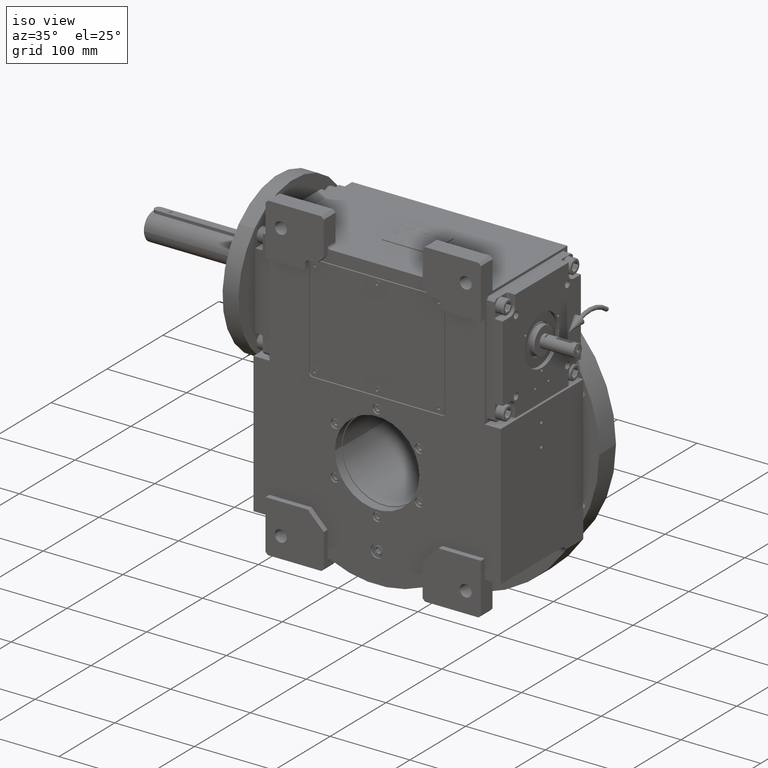
[diagram: clean part render]
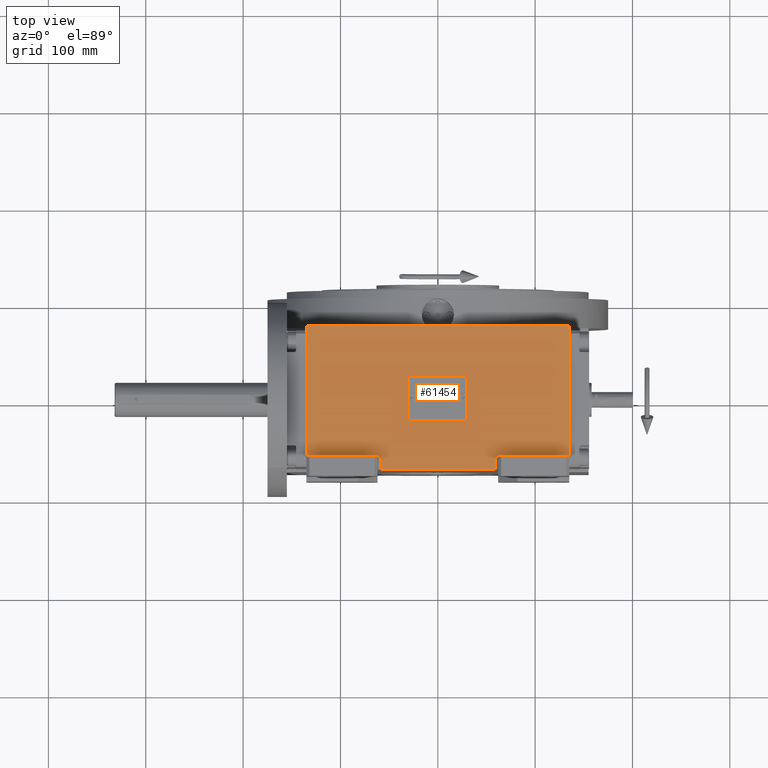
[diagram: tour spotlight — one face highlighted and labeled with its STEP entity id]
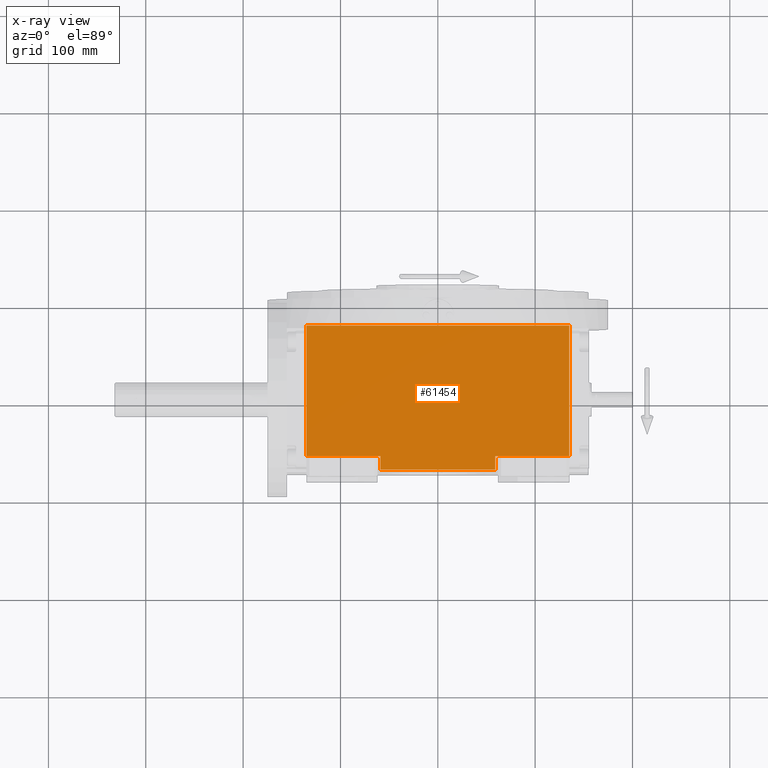
[diagram: x-ray of the same camera — body ghosted, this tour face saturated]
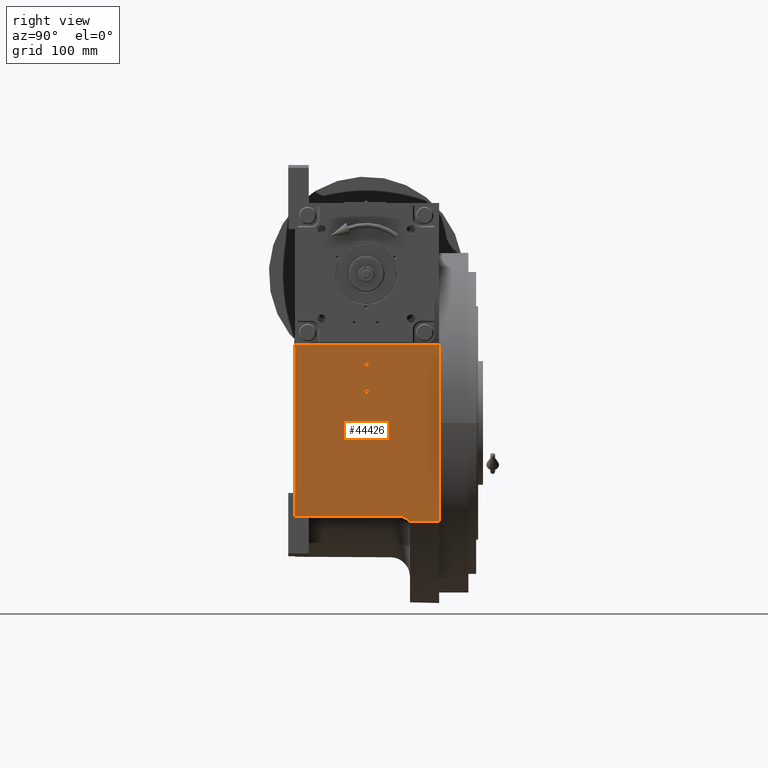
[diagram: tour spotlight — one face highlighted and labeled with its STEP entity id]
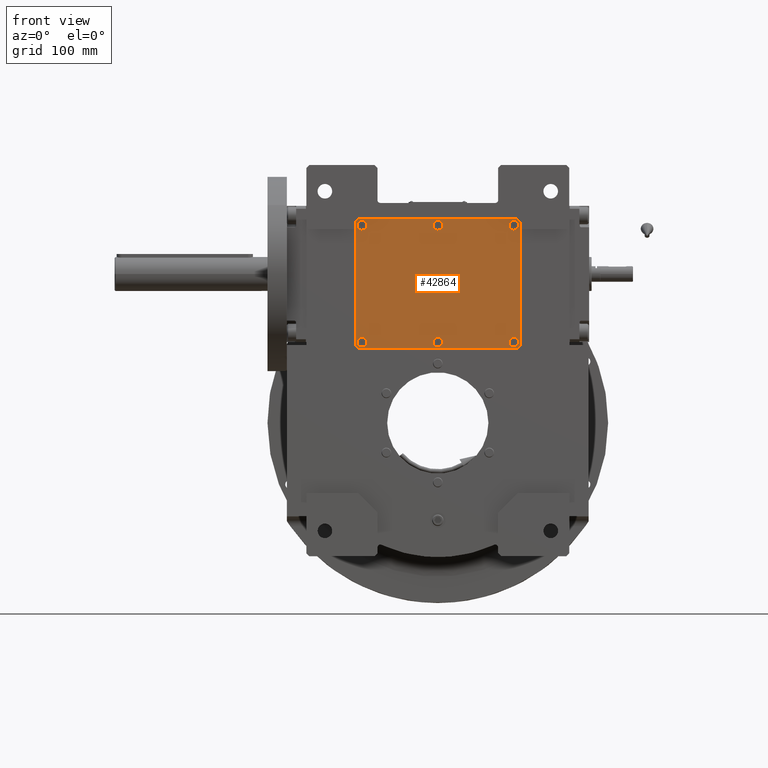
[diagram: tour spotlight — one face highlighted and labeled with its STEP entity id]
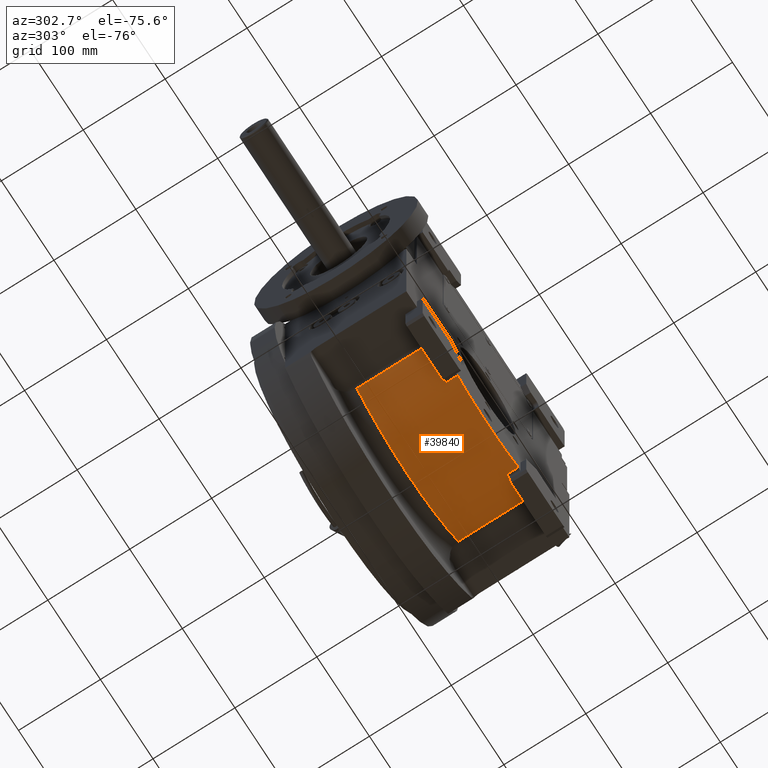
[diagram: tour spotlight — one face highlighted and labeled with its STEP entity id]
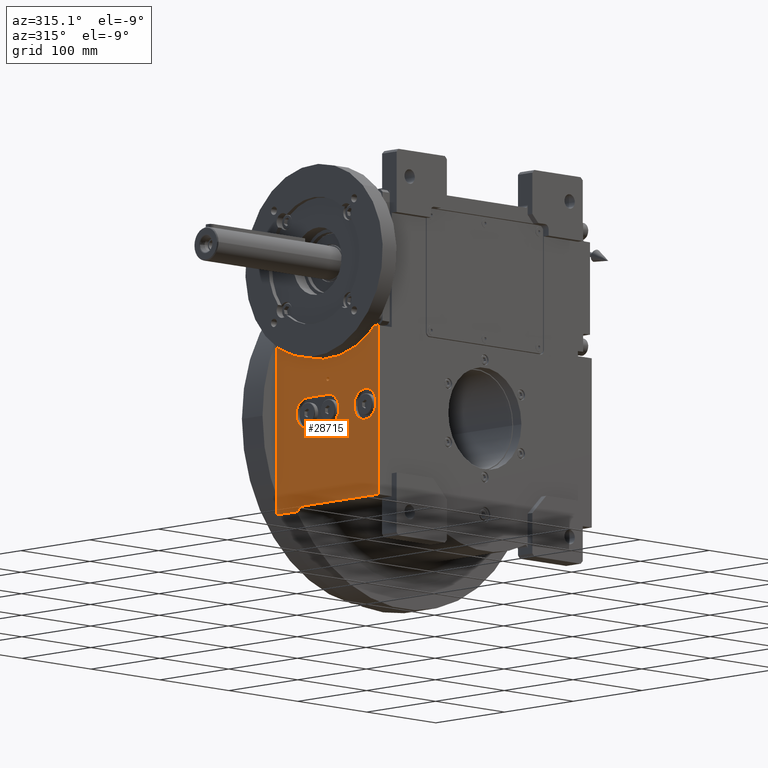
[diagram: tour spotlight — one face highlighted and labeled with its STEP entity id]
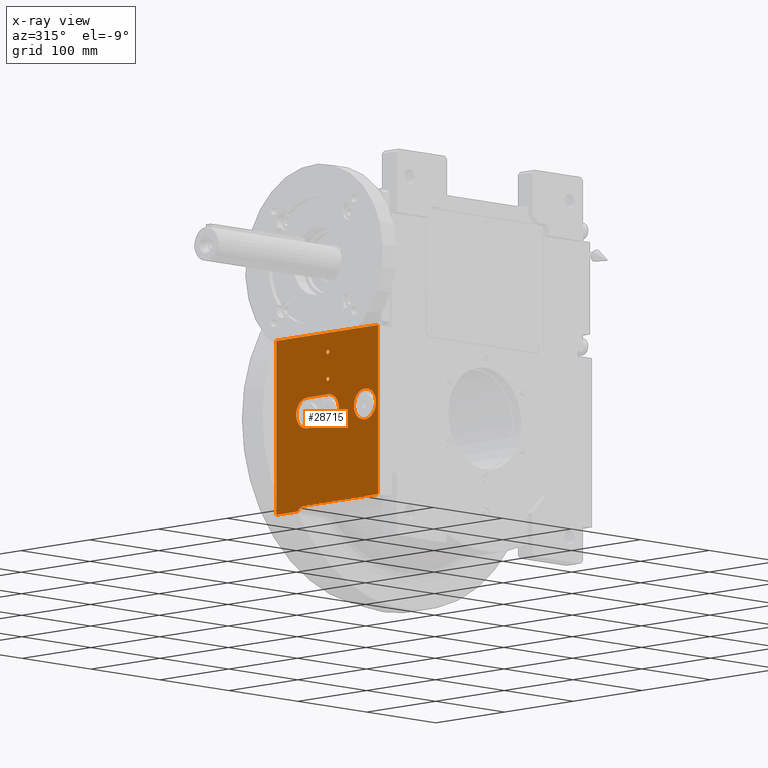
[diagram: x-ray of the same camera — body ghosted, this tour face saturated]
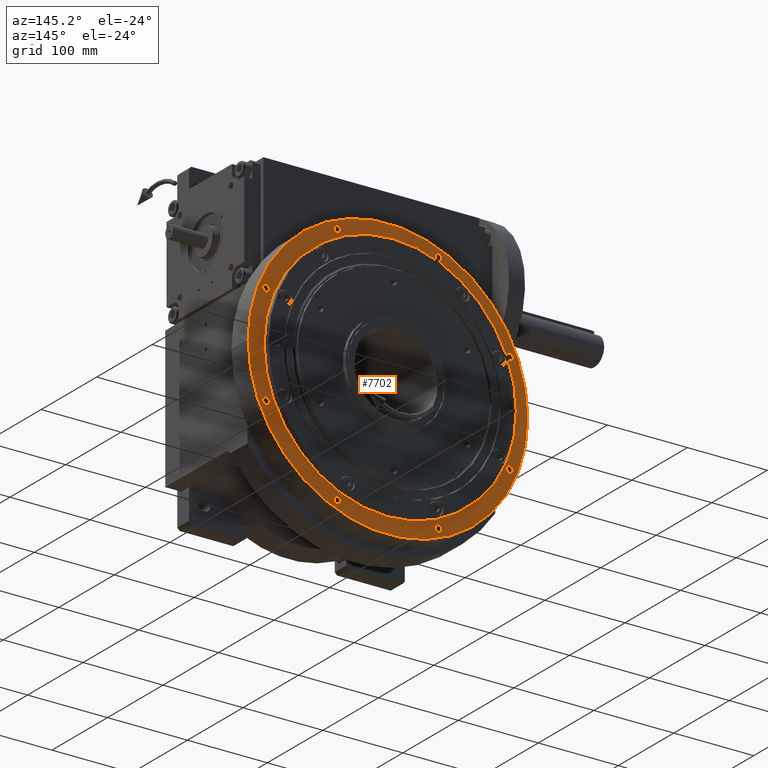
[diagram: tour spotlight — one face highlighted and labeled with its STEP entity id]
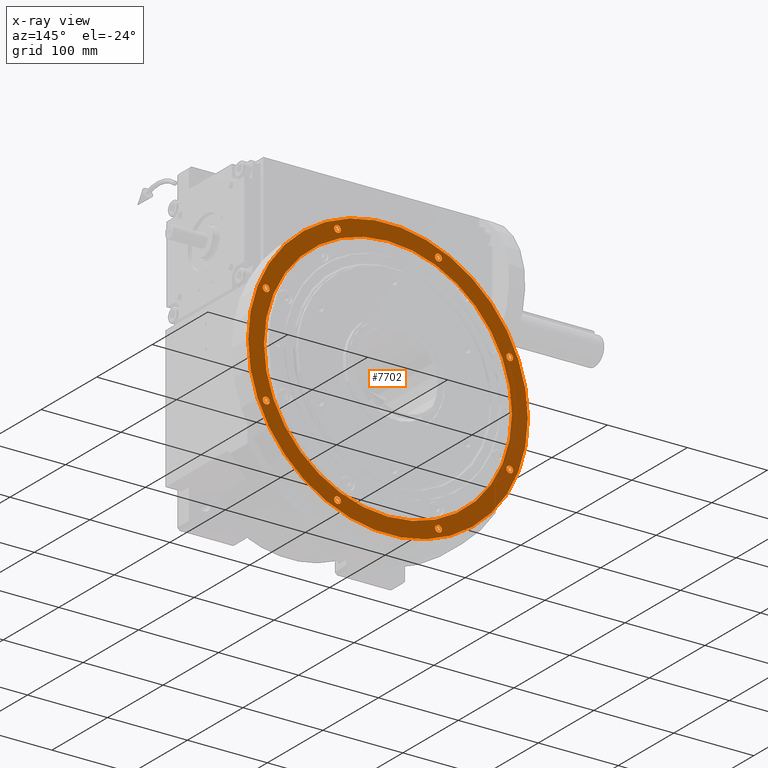
[diagram: x-ray of the same camera — body ghosted, this tour face saturated]
A machine part: a face-by-face anatomy tour. The part has 2115 B-rep faces; the first image is the clean iso view, then the 6 largest visible faces are spotlighted one at a time (largest first), each with its STEP entity span.

Face 1 — top view, entity #61454. An x-ray twin of the same camera follows (body ghosted, this face saturated) — the face is partly hidden behind the body. In plain terms, the highlighted planar face has unit normal (0, 0, 1).
Definition (entity closure, byte-faithful):
#70 = EDGE_CURVE ( 'NONE', #28840, #7182, #68047, .T. ) ;
#322 = CARTESIAN_POINT ( 'NONE',  ( -59.00000000000000000, -73.00000000000000000, 226.0000000000000000 ) ) ;
#1520 = DIRECTION ( 'NONE',  ( 0.000000000000000000, 1.000000000000000000, 0.000000000000000000 ) ) ;
#1909 = CARTESIAN_POINT ( 'NONE',  ( 59.00000000000000000, -59.00000000000000000, 226.0000000000000000 ) ) ;
#2103 = DIRECTION ( 'NONE',  ( 0.000000000000000000, 0.000000000000000000, 1.000000000000000000 ) ) ;
#2375 = VECTOR ( 'NONE', #57528, 1000.000000000000000 ) ;
#5755 = CARTESIAN_POINT ( 'NONE',  ( -59.00000000000000000, -59.00000000000000000, 226.0000000000000000 ) ) ;
#7182 = VERTEX_POINT ( 'NONE', #5755 ) ;
#7714 = CARTESIAN_POINT ( 'NONE',  ( 135.0000000000000000, -59.00000000000000000, 226.0000000000000000 ) ) ;
#7817 = VECTOR ( 'NONE', #14921, 1000.000000000000000 ) ;
#8356 = ORIENTED_EDGE ( 'NONE', *, *, #45423, .T. ) ;
#8546 = ORIENTED_EDGE ( 'NONE', *, *, #45745, .T. ) ;
#9590 = LINE ( 'NONE', #47771, #20912 ) ;
#9681 = DIRECTION ( 'NONE',  ( 0.000000000000000000, 1.000000000000000000, 0.000000000000000000 ) ) ;
#12786 = CARTESIAN_POINT ( 'NONE',  ( -59.00000000000000000, -73.00000000000000000, 226.0000000000000000 ) ) ;
#13956 = CARTESIAN_POINT ( 'NONE',  ( -135.0000000000000000, -59.00000000000000000, 226.0000000000000000 ) ) ;
#14921 = DIRECTION ( 'NONE',  ( 1.000000000000000000, 0.000000000000000000, 0.000000000000000000 ) ) ;
#15820 = DIRECTION ( 'NONE',  ( 1.000000000000000000, 0.000000000000000000, 0.000000000000000000 ) ) ;
#16186 = LINE ( 'NONE', #32182, #50709 ) ;
#17569 = LINE ( 'NONE', #1909, #2375 ) ;
#19775 = DIRECTION ( 'NONE',  ( 0.000000000000000000, 1.000000000000000000, 0.000000000000000000 ) ) ;
#20585 = LINE ( 'NONE', #42746, #45311 ) ;
#20912 = VECTOR ( 'NONE', #48144, 1000.000000000000000 ) ;
#23866 = VERTEX_POINT ( 'NONE', #57487 ) ;
#24066 = CARTESIAN_POINT ( 'NONE',  ( -135.0000000000000000, 75.00000000000000000, 226.0000000000000000 ) ) ;
#25580 = VERTEX_POINT ( 'NONE', #24066 ) ;
#28840 = VERTEX_POINT ( 'NONE', #322 ) ;
#28909 = VERTEX_POINT ( 'NONE', #41672 ) ;
#28979 = EDGE_LOOP ( 'NONE', ( #61572, #68680, #8546, #56963, #45250, #64442, #8356, #41008 ) ) ;
#30002 = VECTOR ( 'NONE', #19775, 1000.000000000000000 ) ;
#31175 = FACE_OUTER_BOUND ( 'NONE', #28979, .T. ) ;
#31383 = VERTEX_POINT ( 'NONE', #7714 ) ;
#31755 = LINE ( 'NONE', #36801, #56958 ) ;
#32182 = CARTESIAN_POINT ( 'NONE',  ( -59.00000000000000000, -73.00000000000000000, 226.0000000000000000 ) ) ;
#33886 = CARTESIAN_POINT ( 'NONE',  ( 135.0000000000000000, 75.00000000000000000, 226.0000000000000000 ) ) ;
#36253 = VERTEX_POINT ( 'NONE', #49118 ) ;
#36459 = DIRECTION ( 'NONE',  ( 0.000000000000000000, -1.000000000000000000, 0.000000000000000000 ) ) ;
#36801 = CARTESIAN_POINT ( 'NONE',  ( 59.00000000000000000, -59.00000000000000000, 226.0000000000000000 ) ) ;
#41008 = ORIENTED_EDGE ( 'NONE', *, *, #70, .F. ) ;
#41672 = CARTESIAN_POINT ( 'NONE',  ( 59.00000000000000000, -59.00000000000000000, 226.0000000000000000 ) ) ;
#42187 = LINE ( 'NONE', #59643, #7817 ) ;
#42746 = CARTESIAN_POINT ( 'NONE',  ( 135.0000000000000000, -59.00000000000000000, 226.0000000000000000 ) ) ;
#45068 = EDGE_CURVE ( 'NONE', #31383, #68959, #20585, .T. ) ;
#45250 = ORIENTED_EDGE ( 'NONE', *, *, #51570, .F. ) ;
#45311 = VECTOR ( 'NONE', #9681, 1000.000000000000000 ) ;
#45423 = EDGE_CURVE ( 'NONE', #36253, #7182, #9590, .T. ) ;
#45745 = EDGE_CURVE ( 'NONE', #28909, #31383, #17569, .T. ) ;
#46342 = LINE ( 'NONE', #13956, #30002 ) ;
#47539 = PLANE ( 'NONE',  #54991 ) ;
#47771 = CARTESIAN_POINT ( 'NONE',  ( -135.0000000000000000, -59.00000000000000000, 226.0000000000000000 ) ) ;
#48144 = DIRECTION ( 'NONE',  ( 1.000000000000000000, 0.000000000000000000, 0.000000000000000000 ) ) ;
#49118 = CARTESIAN_POINT ( 'NONE',  ( -135.0000000000000000, -59.00000000000000000, 226.0000000000000000 ) ) ;
#50701 = EDGE_CURVE ( 'NONE', #28840, #23866, #16186, .T. ) ;
#50709 = VECTOR ( 'NONE', #15820, 1000.000000000000000 ) ;
#51570 = EDGE_CURVE ( 'NONE', #25580, #68959, #42187, .T. ) ;
#53352 = DIRECTION ( 'NONE',  ( 1.000000000000000000, 0.000000000000000000, 0.000000000000000000 ) ) ;
#53996 = EDGE_CURVE ( 'NONE', #36253, #25580, #46342, .T. ) ;
#54991 = AXIS2_PLACEMENT_3D ( 'NONE', #69367, #2103, #53352 ) ;
#56958 = VECTOR ( 'NONE', #36459, 1000.000000000000000 ) ;
#56963 = ORIENTED_EDGE ( 'NONE', *, *, #45068, .T. ) ;
#57487 = CARTESIAN_POINT ( 'NONE',  ( 59.00000000000000000, -73.00000000000000000, 226.0000000000000000 ) ) ;
#57528 = DIRECTION ( 'NONE',  ( 1.000000000000000000, 0.000000000000000000, 0.000000000000000000 ) ) ;
#59643 = CARTESIAN_POINT ( 'NONE',  ( -135.0000000000000000, 75.00000000000000000, 226.0000000000000000 ) ) ;
#61454 = ADVANCED_FACE ( 'NONE', ( #31175 ), #47539, .T. ) ;
#61572 = ORIENTED_EDGE ( 'NONE', *, *, #50701, .T. ) ;
#64215 = VECTOR ( 'NONE', #1520, 1000.000000000000000 ) ;
#64442 = ORIENTED_EDGE ( 'NONE', *, *, #53996, .F. ) ;
#68047 = LINE ( 'NONE', #12786, #64215 ) ;
#68680 = ORIENTED_EDGE ( 'NONE', *, *, #69937, .F. ) ;
#68959 = VERTEX_POINT ( 'NONE', #33886 ) ;
#69367 = CARTESIAN_POINT ( 'NONE',  ( -135.0000000000000000, -73.00000000000000000, 226.0000000000000000 ) ) ;
#69937 = EDGE_CURVE ( 'NONE', #28909, #23866, #31755, .T. ) ;

Face 2 — right view, entity #44426. In plain terms, the highlighted planar face has unit normal (1, 0, 0).
Definition (entity closure, byte-faithful):
#74 = CARTESIAN_POINT ( 'NONE',  ( 155.0000000000000000, 75.00000000000000000, -100.9950493836208096 ) ) ;
#1185 = CARTESIAN_POINT ( 'NONE',  ( 155.0000000000000000, -2.100000000000000089, 60.00000000000000000 ) ) ;
#1238 = ORIENTED_EDGE ( 'NONE', *, *, #3593, .T. ) ;
#2727 = CARTESIAN_POINT ( 'NONE',  ( 155.0000000000000000, 75.00000000000000000, 80.00000000000000000 ) ) ;
#3032 = EDGE_CURVE ( 'NONE', #8629, #38765, #66722, .T. ) ;
#3072 = DIRECTION ( 'NONE',  ( 3.140606279253960088E-16, 0.000000000000000000, -1.000000000000000000 ) ) ;
#3334 = ORIENTED_EDGE ( 'NONE', *, *, #69335, .F. ) ;
#3482 = VERTEX_POINT ( 'NONE', #71017 ) ;
#3593 = EDGE_CURVE ( 'NONE', #38765, #3831, #34719, .T. ) ;
#3831 = VERTEX_POINT ( 'NONE', #25132 ) ;
#4657 = VECTOR ( 'NONE', #34333, 1000.000000000000000 ) ;
#7597 = VERTEX_POINT ( 'NONE', #50015 ) ;
#7795 = CARTESIAN_POINT ( 'NONE',  ( 155.0000000000000000, 0.000000000000000000, 60.00000000000000000 ) ) ;
#8329 = DIRECTION ( 'NONE',  ( 3.140606279253960088E-16, 0.000000000000000000, -1.000000000000000000 ) ) ;
#8629 = VERTEX_POINT ( 'NONE', #63495 ) ;
#10810 = ORIENTED_EDGE ( 'NONE', *, *, #58728, .T. ) ;
#11391 = ORIENTED_EDGE ( 'NONE', *, *, #24994, .T. ) ;
#11643 = DIRECTION ( 'NONE',  ( 0.000000000000000000, 1.000000000000000000, 0.000000000000000000 ) ) ;
#12178 = CARTESIAN_POINT ( 'NONE',  ( 155.0000000000000000, -73.00000000000000000, 80.00000000000000000 ) ) ;
#13374 = EDGE_CURVE ( 'NONE', #51220, #33770, #31211, .T. ) ;
#13436 = CARTESIAN_POINT ( 'NONE',  ( 155.0000000000000000, -73.00000000000000000, 80.00000000000000000 ) ) ;
#13913 = AXIS2_PLACEMENT_3D ( 'NONE', #16006, #54910, #38153 ) ;
#16006 = CARTESIAN_POINT ( 'NONE',  ( 155.0000000000000000, 2.220446049250315053E-16, 32.00000000000000000 ) ) ;
#16767 = CARTESIAN_POINT ( 'NONE',  ( 155.0000000000000000, 75.00000000000000000, 80.00000000000000000 ) ) ;
#16911 = DIRECTION ( 'NONE',  ( 0.000000000000000000, 1.000000000000000000, 0.000000000000000000 ) ) ;
#18154 = ORIENTED_EDGE ( 'NONE', *, *, #71893, .F. ) ;
#18227 = VERTEX_POINT ( 'NONE', #1185 ) ;
#18900 = PLANE ( 'NONE',  #68415 ) ;
#22301 = CARTESIAN_POINT ( 'NONE',  ( 155.0000000000000000, 35.00000000000000000, -106.0000000000000000 ) ) ;
#23338 = DIRECTION ( 'NONE',  ( 0.000000000000000000, 1.000000000000000000, 0.000000000000000000 ) ) ;
#24726 = FACE_BOUND ( 'NONE', #51078, .T. ) ;
#24994 = EDGE_CURVE ( 'NONE', #7597, #8629, #39772, .T. ) ;
#25132 = CARTESIAN_POINT ( 'NONE',  ( 155.0000000000000000, 43.65739391084900234, -100.9950493836208096 ) ) ;
#27125 = CARTESIAN_POINT ( 'NONE',  ( 155.0000000000000000, -73.00000000000000000, -96.00000000000000000 ) ) ;
#27240 = CARTESIAN_POINT ( 'NONE',  ( 155.0000000000000000, 43.65739391084900234, -100.9950493836205965 ) ) ;
#28081 = CARTESIAN_POINT ( 'NONE',  ( 155.0000000000000000, 0.000000000000000000, 60.00000000000000000 ) ) ;
#28349 = VECTOR ( 'NONE', #3072, 1000.000000000000000 ) ;
#29859 = DIRECTION ( 'NONE',  ( 1.000000000000000000, 0.000000000000000000, 0.000000000000000000 ) ) ;
#29998 = DIRECTION ( 'NONE',  ( 1.000000000000000000, 0.000000000000000000, 0.000000000000000000 ) ) ;
#30936 = EDGE_CURVE ( 'NONE', #60220, #40560, #58327, .T. ) ;
#31172 = CARTESIAN_POINT ( 'NONE',  ( 155.0000000000000000, -2.099999999999999645, 32.00000000000000000 ) ) ;
#31211 = CIRCLE ( 'NONE', #59048, 2.100000000000000089 ) ;
#32813 = DIRECTION ( 'NONE',  ( -1.000000000000000000, 0.000000000000000000, 0.000000000000000000 ) ) ;
#33024 = LINE ( 'NONE', #27240, #61849 ) ;
#33418 = VECTOR ( 'NONE', #11643, 1000.000000000000000 ) ;
#33770 = VERTEX_POINT ( 'NONE', #31172 ) ;
#34333 = DIRECTION ( 'NONE',  ( 3.229739708000455480E-16, 0.000000000000000000, -1.000000000000000000 ) ) ;
#34719 = CIRCLE ( 'NONE', #62582, 9.999999999999994671 ) ;
#35181 = DIRECTION ( 'NONE',  ( 0.000000000000000000, 1.000000000000000000, 0.000000000000000000 ) ) ;
#38153 = DIRECTION ( 'NONE',  ( 0.000000000000000000, 1.000000000000000000, 0.000000000000000000 ) ) ;
#38665 = CARTESIAN_POINT ( 'NONE',  ( 155.0000000000000000, 35.00000000000000000, -96.00000000000000000 ) ) ;
#38765 = VERTEX_POINT ( 'NONE', #38665 ) ;
#39291 = EDGE_LOOP ( 'NONE', ( #3334, #57378 ) ) ;
#39772 = LINE ( 'NONE', #12178, #4657 ) ;
#40560 = VERTEX_POINT ( 'NONE', #74 ) ;
#42492 = EDGE_CURVE ( 'NONE', #7597, #60220, #44721, .T. ) ;
#44426 = ADVANCED_FACE ( 'NONE', ( #46525, #24726, #68705 ), #18900, .T. ) ;
#44456 = DIRECTION ( 'NONE',  ( 0.000000000000000000, 6.938893903907232322E-16, 1.000000000000000000 ) ) ;
#44721 = LINE ( 'NONE', #61428, #33418 ) ;
#46150 = EDGE_LOOP ( 'NONE', ( #54072, #69362, #11391, #60500, #1238, #10810 ) ) ;
#46525 = FACE_BOUND ( 'NONE', #39291, .T. ) ;
#46885 = DIRECTION ( 'NONE',  ( 1.000000000000000000, 0.000000000000000000, 3.140606279253960088E-16 ) ) ;
#46939 = CIRCLE ( 'NONE', #65518, 2.100000000000000089 ) ;
#47423 = DIRECTION ( 'NONE',  ( 0.000000000000000000, 1.000000000000000000, 0.000000000000000000 ) ) ;
#47559 = CIRCLE ( 'NONE', #13913, 2.100000000000000089 ) ;
#48461 = CARTESIAN_POINT ( 'NONE',  ( 155.0000000000000000, 2.100000000000000089, 32.00000000000000000 ) ) ;
#49001 = ORIENTED_EDGE ( 'NONE', *, *, #62161, .F. ) ;
#50015 = CARTESIAN_POINT ( 'NONE',  ( 155.0000000000000000, -73.00000000000000000, 80.00000000000000000 ) ) ;
#50503 = CARTESIAN_POINT ( 'NONE',  ( 155.0000000000000000, 2.220446049250315053E-16, 32.00000000000000000 ) ) ;
#50848 = DIRECTION ( 'NONE',  ( 1.000000000000000000, 0.000000000000000000, 0.000000000000000000 ) ) ;
#51078 = EDGE_LOOP ( 'NONE', ( #49001, #18154 ) ) ;
#51220 = VERTEX_POINT ( 'NONE', #48461 ) ;
#53484 = DIRECTION ( 'NONE',  ( 0.000000000000000000, 1.000000000000000000, -9.068074731744140484E-16 ) ) ;
#53676 = AXIS2_PLACEMENT_3D ( 'NONE', #7795, #29998, #47423 ) ;
#54072 = ORIENTED_EDGE ( 'NONE', *, *, #30936, .F. ) ;
#54910 = DIRECTION ( 'NONE',  ( 1.000000000000000000, 0.000000000000000000, 0.000000000000000000 ) ) ;
#57378 = ORIENTED_EDGE ( 'NONE', *, *, #13374, .F. ) ;
#58327 = LINE ( 'NONE', #2727, #28349 ) ;
#58728 = EDGE_CURVE ( 'NONE', #3831, #40560, #33024, .T. ) ;
#59048 = AXIS2_PLACEMENT_3D ( 'NONE', #50503, #50848, #35181 ) ;
#60220 = VERTEX_POINT ( 'NONE', #16767 ) ;
#60500 = ORIENTED_EDGE ( 'NONE', *, *, #3032, .T. ) ;
#61428 = CARTESIAN_POINT ( 'NONE',  ( 155.0000000000000000, -73.00000000000000000, 80.00000000000000000 ) ) ;
#61849 = VECTOR ( 'NONE', #53484, 1000.000000000000000 ) ;
#62161 = EDGE_CURVE ( 'NONE', #18227, #3482, #46939, .T. ) ;
#62582 = AXIS2_PLACEMENT_3D ( 'NONE', #22301, #32813, #44456 ) ;
#63495 = CARTESIAN_POINT ( 'NONE',  ( 155.0000000000000000, -73.00000000000000000, -96.00000000000000000 ) ) ;
#65305 = CIRCLE ( 'NONE', #53676, 2.100000000000000089 ) ;
#65518 = AXIS2_PLACEMENT_3D ( 'NONE', #28081, #29859, #23338 ) ;
#66722 = LINE ( 'NONE', #27125, #70655 ) ;
#68415 = AXIS2_PLACEMENT_3D ( 'NONE', #13436, #46885, #8329 ) ;
#68705 = FACE_OUTER_BOUND ( 'NONE', #46150, .T. ) ;
#69335 = EDGE_CURVE ( 'NONE', #33770, #51220, #47559, .T. ) ;
#69362 = ORIENTED_EDGE ( 'NONE', *, *, #42492, .F. ) ;
#70655 = VECTOR ( 'NONE', #16911, 1000.000000000000000 ) ;
#71017 = CARTESIAN_POINT ( 'NONE',  ( 155.0000000000000000, 2.100000000000000089, 60.00000000000000000 ) ) ;
#71893 = EDGE_CURVE ( 'NONE', #3482, #18227, #65305, .T. ) ;

Face 3 — front view, entity #42864. In plain terms, the highlighted planar face has unit normal (0, -1, 0).
Definition (entity closure, byte-faithful):
#493 = CIRCLE ( 'NONE', #17879, 4.500000000000003553 ) ;
#1023 = DIRECTION ( 'NONE',  ( 0.000000000000000000, 0.000000000000000000, 1.000000000000000000 ) ) ;
#1243 = DIRECTION ( 'NONE',  ( -1.000000000000000000, 0.000000000000000000, 0.000000000000000000 ) ) ;
#1534 = EDGE_CURVE ( 'NONE', #59558, #56070, #24582, .T. ) ;
#1869 = DIRECTION ( 'NONE',  ( 0.7071067811865474617, -0.7071067811865474617, 0.000000000000000000 ) ) ;
#3343 = CIRCLE ( 'NONE', #12634, 4.500000000000000000 ) ;
#3551 = AXIS2_PLACEMENT_3D ( 'NONE', #58297, #53926, #14311 ) ;
#4535 = DIRECTION ( 'NONE',  ( 0.000000000000000000, 0.000000000000000000, 1.000000000000000000 ) ) ;
#4653 = CARTESIAN_POINT ( 'NONE',  ( 0.000000000000000000, 60.00000000000000000, 3.000000000000002665 ) ) ;
#6609 = VERTEX_POINT ( 'NONE', #21497 ) ;
#6935 = EDGE_CURVE ( 'NONE', #31901, #38753, #493, .T. ) ;
#7136 = CARTESIAN_POINT ( 'NONE',  ( 81.50000000000000000, 66.50000000000000000, 3.000000000000002665 ) ) ;
#7147 = VERTEX_POINT ( 'NONE', #28660 ) ;
#7299 = AXIS2_PLACEMENT_3D ( 'NONE', #66476, #69867, #30949 ) ;
#7541 = CARTESIAN_POINT ( 'NONE',  ( 84.50000000000000000, 63.50000000000000000, 3.000000000000002665 ) ) ;
#7776 = ORIENTED_EDGE ( 'NONE', *, *, #19491, .F. ) ;
#8374 = DIRECTION ( 'NONE',  ( -1.000000000000000000, 0.000000000000000000, 0.000000000000000000 ) ) ;
#9381 = CARTESIAN_POINT ( 'NONE',  ( -84.50000000000000000, -63.50000000000000000, 3.000000000000002665 ) ) ;
#9727 = CARTESIAN_POINT ( 'NONE',  ( 84.50000000000000000, -63.50000000000000000, 3.000000000000002665 ) ) ;
#10949 = CARTESIAN_POINT ( 'NONE',  ( -82.50000000000000000, -60.00000000000000000, 3.000000000000002665 ) ) ;
#11249 = VECTOR ( 'NONE', #1869, 1000.000000000000114 ) ;
#11444 = ORIENTED_EDGE ( 'NONE', *, *, #62993, .T. ) ;
#12422 = DIRECTION ( 'NONE',  ( 1.000000000000000000, 0.000000000000000000, 0.000000000000000000 ) ) ;
#12634 = AXIS2_PLACEMENT_3D ( 'NONE', #67335, #61509, #12422 ) ;
#13229 = EDGE_CURVE ( 'NONE', #15189, #34517, #3343, .T. ) ;
#14311 = DIRECTION ( 'NONE',  ( -1.000000000000000000, 0.000000000000000000, 0.000000000000000000 ) ) ;
#14395 = VERTEX_POINT ( 'NONE', #14572 ) ;
#14572 = CARTESIAN_POINT ( 'NONE',  ( 82.50000000000000000, 60.00000000000000000, 3.000000000000002665 ) ) ;
#15189 = VERTEX_POINT ( 'NONE', #23215 ) ;
#15438 = VECTOR ( 'NONE', #21161, 1000.000000000000000 ) ;
#15572 = DIRECTION ( 'NONE',  ( 0.000000000000000000, 0.000000000000000000, 1.000000000000000000 ) ) ;
#15876 = VERTEX_POINT ( 'NONE', #43655 ) ;
#16492 = EDGE_CURVE ( 'NONE', #6609, #19809, #66456, .T. ) ;
#16530 = CARTESIAN_POINT ( 'NONE',  ( 81.50000000000000000, -66.50000000000000000, 3.000000000000002665 ) ) ;
#16654 = FACE_BOUND ( 'NONE', #35895, .T. ) ;
#17186 = AXIS2_PLACEMENT_3D ( 'NONE', #41722, #64628, #36983 ) ;
#17879 = AXIS2_PLACEMENT_3D ( 'NONE', #57066, #24718, #30868 ) ;
#18149 = EDGE_LOOP ( 'NONE', ( #7776, #40468 ) ) ;
#18519 = DIRECTION ( 'NONE',  ( -0.7071067811865474617, -0.7071067811865474617, 0.000000000000000000 ) ) ;
#18770 = AXIS2_PLACEMENT_3D ( 'NONE', #4653, #15572, #59906 ) ;
#18928 = CARTESIAN_POINT ( 'NONE',  ( 84.50000000000000000, -63.50000000000000000, 3.000000000000002665 ) ) ;
#19476 = CARTESIAN_POINT ( 'NONE',  ( -81.50000000000000000, 66.50000000000000000, 3.000000000000002665 ) ) ;
#19491 = EDGE_CURVE ( 'NONE', #14395, #50859, #43679, .T. ) ;
#19809 = VERTEX_POINT ( 'NONE', #10949 ) ;
#20798 = VECTOR ( 'NONE', #62570, 1000.000000000000114 ) ;
#20801 = ORIENTED_EDGE ( 'NONE', *, *, #16492, .F. ) ;
#21025 = FACE_BOUND ( 'NONE', #18149, .T. ) ;
#21096 = AXIS2_PLACEMENT_3D ( 'NONE', #68258, #1023, #55566 ) ;
#21161 = DIRECTION ( 'NONE',  ( 1.000000000000000000, 0.000000000000000000, 0.000000000000000000 ) ) ;
#21497 = CARTESIAN_POINT ( 'NONE',  ( -73.50000000000000000, -60.00000000000000000, 3.000000000000002665 ) ) ;
#21751 = PLANE ( 'NONE',  #34549 ) ;
#21998 = LINE ( 'NONE', #16530, #20798 ) ;
#22120 = FACE_BOUND ( 'NONE', #62807, .T. ) ;
#22197 = CARTESIAN_POINT ( 'NONE',  ( -4.500000000000000000, 60.00000000000000000, 3.000000000000002665 ) ) ;
#22315 = DIRECTION ( 'NONE',  ( -0.7071067811865474617, 0.7071067811865474617, 0.000000000000000000 ) ) ;
#22624 = ORIENTED_EDGE ( 'NONE', *, *, #58696, .F. ) ;
#23043 = CARTESIAN_POINT ( 'NONE',  ( 4.500000000000000000, 60.00000000000000000, 3.000000000000002665 ) ) ;
#23215 = CARTESIAN_POINT ( 'NONE',  ( 4.500000000000000000, -60.00000000000000000, 3.000000000000002665 ) ) ;
#23364 = EDGE_CURVE ( 'NONE', #53634, #70001, #60601, .T. ) ;
#23787 = EDGE_CURVE ( 'NONE', #7147, #33059, #21998, .T. ) ;
#24160 = VERTEX_POINT ( 'NONE', #22197 ) ;
#24582 = LINE ( 'NONE', #7136, #33044 ) ;
#24621 = CARTESIAN_POINT ( 'NONE',  ( 73.50000000000000000, -60.00000000000000000, 3.000000000000002665 ) ) ;
#24718 = DIRECTION ( 'NONE',  ( 0.000000000000000000, 0.000000000000000000, 1.000000000000000000 ) ) ;
#25027 = ORIENTED_EDGE ( 'NONE', *, *, #6935, .F. ) ;
#25378 = VECTOR ( 'NONE', #50062, 1000.000000000000000 ) ;
#25690 = CARTESIAN_POINT ( 'NONE',  ( -84.50000000000000000, 63.50000000000000000, 3.000000000000002665 ) ) ;
#25779 = CIRCLE ( 'NONE', #21096, 4.500000000000003553 ) ;
#26151 = VECTOR ( 'NONE', #54793, 1000.000000000000000 ) ;
#26344 = EDGE_CURVE ( 'NONE', #44793, #59558, #37889, .T. ) ;
#27046 = CARTESIAN_POINT ( 'NONE',  ( 84.50000000000000000, 63.50000000000000000, 3.000000000000002665 ) ) ;
#27455 = DIRECTION ( 'NONE',  ( 1.000000000000000000, 0.000000000000000000, 0.000000000000000000 ) ) ;
#27547 = CARTESIAN_POINT ( 'NONE',  ( -84.50000000000000000, 63.50000000000000000, 3.000000000000002665 ) ) ;
#27570 = CARTESIAN_POINT ( 'NONE',  ( 0.000000000000000000, 0.000000000000000000, 3.000000000000002665 ) ) ;
#28660 = CARTESIAN_POINT ( 'NONE',  ( 81.50000000000000000, -66.50000000000000000, 3.000000000000002665 ) ) ;
#28891 = CARTESIAN_POINT ( 'NONE',  ( 78.00000000000000000, -60.00000000000000000, 3.000000000000002665 ) ) ;
#29234 = CIRCLE ( 'NONE', #32679, 4.500000000000003553 ) ;
#29348 = DIRECTION ( 'NONE',  ( -1.000000000000000000, 0.000000000000000000, 0.000000000000000000 ) ) ;
#29706 = VERTEX_POINT ( 'NONE', #23043 ) ;
#30464 = EDGE_LOOP ( 'NONE', ( #37980, #69807 ) ) ;
#30868 = DIRECTION ( 'NONE',  ( 1.000000000000000000, 0.000000000000000000, 0.000000000000000000 ) ) ;
#30949 = DIRECTION ( 'NONE',  ( -1.000000000000000000, 0.000000000000000000, 0.000000000000000000 ) ) ;
#31901 = VERTEX_POINT ( 'NONE', #38010 ) ;
#32555 = VECTOR ( 'NONE', #18519, 1000.000000000000114 ) ;
#32679 = AXIS2_PLACEMENT_3D ( 'NONE', #28891, #51051, #1243 ) ;
#32700 = CARTESIAN_POINT ( 'NONE',  ( -4.500000000000000000, -60.00000000000000000, 3.000000000000002665 ) ) ;
#33010 = DIRECTION ( 'NONE',  ( 1.000000000000000000, 0.000000000000000000, 0.000000000000000000 ) ) ;
#33044 = VECTOR ( 'NONE', #29348, 1000.000000000000000 ) ;
#33059 = VERTEX_POINT ( 'NONE', #18928 ) ;
#34112 = DIRECTION ( 'NONE',  ( 1.000000000000000000, 0.000000000000000000, 0.000000000000000000 ) ) ;
#34517 = VERTEX_POINT ( 'NONE', #32700 ) ;
#34549 = AXIS2_PLACEMENT_3D ( 'NONE', #27570, #37704, #33010 ) ;
#34808 = CARTESIAN_POINT ( 'NONE',  ( -78.00000000000000000, -60.00000000000000000, 3.000000000000002665 ) ) ;
#35276 = VERTEX_POINT ( 'NONE', #45436 ) ;
#35731 = EDGE_LOOP ( 'NONE', ( #20801, #65613 ) ) ;
#35895 = EDGE_LOOP ( 'NONE', ( #67954, #41789 ) ) ;
#35919 = CARTESIAN_POINT ( 'NONE',  ( -81.50000000000000000, 66.50000000000000000, 3.000000000000002665 ) ) ;
#36947 = VERTEX_POINT ( 'NONE', #24621 ) ;
#36983 = DIRECTION ( 'NONE',  ( 1.000000000000000000, 0.000000000000000000, 0.000000000000000000 ) ) ;
#37045 = EDGE_LOOP ( 'NONE', ( #25027, #22624 ) ) ;
#37704 = DIRECTION ( 'NONE',  ( 0.000000000000000000, 0.000000000000000000, 1.000000000000000000 ) ) ;
#37889 = LINE ( 'NONE', #27046, #60526 ) ;
#37930 = ORIENTED_EDGE ( 'NONE', *, *, #64299, .T. ) ;
#37980 = ORIENTED_EDGE ( 'NONE', *, *, #13229, .F. ) ;
#38010 = CARTESIAN_POINT ( 'NONE',  ( -73.50000000000000000, 60.00000000000000000, 3.000000000000002665 ) ) ;
#38458 = CIRCLE ( 'NONE', #18770, 4.500000000000000000 ) ;
#38735 = ORIENTED_EDGE ( 'NONE', *, *, #23364, .T. ) ;
#38753 = VERTEX_POINT ( 'NONE', #49594 ) ;
#39063 = ORIENTED_EDGE ( 'NONE', *, *, #57306, .F. ) ;
#40468 = ORIENTED_EDGE ( 'NONE', *, *, #69975, .F. ) ;
#40766 = EDGE_CURVE ( 'NONE', #34517, #15189, #62432, .T. ) ;
#41023 = LINE ( 'NONE', #35919, #32555 ) ;
#41566 = CARTESIAN_POINT ( 'NONE',  ( 81.50000000000000000, 66.50000000000000000, 3.000000000000002665 ) ) ;
#41722 = CARTESIAN_POINT ( 'NONE',  ( 78.00000000000000000, -60.00000000000000000, 3.000000000000002665 ) ) ;
#41789 = ORIENTED_EDGE ( 'NONE', *, *, #48227, .F. ) ;
#42761 = EDGE_CURVE ( 'NONE', #35276, #36947, #49676, .T. ) ;
#42864 = ADVANCED_FACE ( 'NONE', ( #70844, #21025, #22120, #66459, #16654, #55184, #66090 ), #21751, .T. ) ;
#43655 = CARTESIAN_POINT ( 'NONE',  ( -81.50000000000000000, -66.50000000000000000, 3.000000000000002665 ) ) ;
#43679 = CIRCLE ( 'NONE', #48358, 4.500000000000003553 ) ;
#44793 = VERTEX_POINT ( 'NONE', #7541 ) ;
#45436 = CARTESIAN_POINT ( 'NONE',  ( 82.50000000000000000, -60.00000000000000000, 3.000000000000002665 ) ) ;
#46522 = CIRCLE ( 'NONE', #3551, 4.500000000000003553 ) ;
#46967 = CARTESIAN_POINT ( 'NONE',  ( 78.00000000000000000, 60.00000000000000000, 3.000000000000002665 ) ) ;
#47941 = CIRCLE ( 'NONE', #7299, 4.500000000000003553 ) ;
#48227 = EDGE_CURVE ( 'NONE', #36947, #35276, #29234, .T. ) ;
#48358 = AXIS2_PLACEMENT_3D ( 'NONE', #46967, #62252, #68800 ) ;
#49593 = ORIENTED_EDGE ( 'NONE', *, *, #69439, .T. ) ;
#49594 = CARTESIAN_POINT ( 'NONE',  ( -82.50000000000000000, 60.00000000000000000, 3.000000000000002665 ) ) ;
#49676 = CIRCLE ( 'NONE', #17186, 4.500000000000003553 ) ;
#50062 = DIRECTION ( 'NONE',  ( 0.000000000000000000, -1.000000000000000000, 0.000000000000000000 ) ) ;
#50859 = VERTEX_POINT ( 'NONE', #56884 ) ;
#51051 = DIRECTION ( 'NONE',  ( 0.000000000000000000, 0.000000000000000000, 1.000000000000000000 ) ) ;
#53634 = VERTEX_POINT ( 'NONE', #25690 ) ;
#53926 = DIRECTION ( 'NONE',  ( 0.000000000000000000, 0.000000000000000000, 1.000000000000000000 ) ) ;
#54060 = ORIENTED_EDGE ( 'NONE', *, *, #23787, .T. ) ;
#54793 = DIRECTION ( 'NONE',  ( 0.000000000000000000, 1.000000000000000000, 0.000000000000000000 ) ) ;
#54868 = ORIENTED_EDGE ( 'NONE', *, *, #60870, .T. ) ;
#55184 = FACE_BOUND ( 'NONE', #30464, .T. ) ;
#55311 = CARTESIAN_POINT ( 'NONE',  ( -81.50000000000000000, -66.50000000000000000, 3.000000000000002665 ) ) ;
#55566 = DIRECTION ( 'NONE',  ( -1.000000000000000000, 0.000000000000000000, 0.000000000000000000 ) ) ;
#56070 = VERTEX_POINT ( 'NONE', #19476 ) ;
#56460 = CIRCLE ( 'NONE', #65736, 4.500000000000000000 ) ;
#56631 = AXIS2_PLACEMENT_3D ( 'NONE', #63626, #70545, #8374 ) ;
#56884 = CARTESIAN_POINT ( 'NONE',  ( 73.50000000000000000, 60.00000000000000000, 3.000000000000002665 ) ) ;
#57066 = CARTESIAN_POINT ( 'NONE',  ( -78.00000000000000000, 60.00000000000000000, 3.000000000000002665 ) ) ;
#57306 = EDGE_CURVE ( 'NONE', #24160, #29706, #38458, .T. ) ;
#58297 = CARTESIAN_POINT ( 'NONE',  ( 78.00000000000000000, 60.00000000000000000, 3.000000000000002665 ) ) ;
#58696 = EDGE_CURVE ( 'NONE', #38753, #31901, #47941, .T. ) ;
#59558 = VERTEX_POINT ( 'NONE', #41566 ) ;
#59729 = CARTESIAN_POINT ( 'NONE',  ( -84.50000000000000000, -63.50000000000000000, 3.000000000000002665 ) ) ;
#59906 = DIRECTION ( 'NONE',  ( -1.000000000000000000, 0.000000000000000000, 0.000000000000000000 ) ) ;
#60034 = EDGE_LOOP ( 'NONE', ( #11444, #68291, #69026, #49593, #38735, #37930, #54868, #54060 ) ) ;
#60165 = ORIENTED_EDGE ( 'NONE', *, *, #63510, .F. ) ;
#60526 = VECTOR ( 'NONE', #22315, 1000.000000000000114 ) ;
#60601 = LINE ( 'NONE', #27547, #25378 ) ;
#60624 = AXIS2_PLACEMENT_3D ( 'NONE', #34808, #62439, #34112 ) ;
#60870 = EDGE_CURVE ( 'NONE', #15876, #7147, #70980, .T. ) ;
#61509 = DIRECTION ( 'NONE',  ( 0.000000000000000000, 0.000000000000000000, 1.000000000000000000 ) ) ;
#62252 = DIRECTION ( 'NONE',  ( 0.000000000000000000, 0.000000000000000000, 1.000000000000000000 ) ) ;
#62432 = CIRCLE ( 'NONE', #56631, 4.500000000000000000 ) ;
#62439 = DIRECTION ( 'NONE',  ( 0.000000000000000000, 0.000000000000000000, 1.000000000000000000 ) ) ;
#62570 = DIRECTION ( 'NONE',  ( 0.7071067811865474617, 0.7071067811865474617, 0.000000000000000000 ) ) ;
#62807 = EDGE_LOOP ( 'NONE', ( #60165, #39063 ) ) ;
#62993 = EDGE_CURVE ( 'NONE', #33059, #44793, #65357, .T. ) ;
#63510 = EDGE_CURVE ( 'NONE', #29706, #24160, #56460, .T. ) ;
#63626 = CARTESIAN_POINT ( 'NONE',  ( 0.000000000000000000, -60.00000000000000000, 3.000000000000002665 ) ) ;
#64299 = EDGE_CURVE ( 'NONE', #70001, #15876, #64624, .T. ) ;
#64624 = LINE ( 'NONE', #9381, #11249 ) ;
#64628 = DIRECTION ( 'NONE',  ( 0.000000000000000000, 0.000000000000000000, 1.000000000000000000 ) ) ;
#65357 = LINE ( 'NONE', #9727, #26151 ) ;
#65613 = ORIENTED_EDGE ( 'NONE', *, *, #71258, .F. ) ;
#65736 = AXIS2_PLACEMENT_3D ( 'NONE', #71820, #4535, #27455 ) ;
#66090 = FACE_BOUND ( 'NONE', #35731, .T. ) ;
#66456 = CIRCLE ( 'NONE', #60624, 4.500000000000003553 ) ;
#66459 = FACE_BOUND ( 'NONE', #37045, .T. ) ;
#66476 = CARTESIAN_POINT ( 'NONE',  ( -78.00000000000000000, 60.00000000000000000, 3.000000000000002665 ) ) ;
#67335 = CARTESIAN_POINT ( 'NONE',  ( 0.000000000000000000, -60.00000000000000000, 3.000000000000002665 ) ) ;
#67954 = ORIENTED_EDGE ( 'NONE', *, *, #42761, .F. ) ;
#68258 = CARTESIAN_POINT ( 'NONE',  ( -78.00000000000000000, -60.00000000000000000, 3.000000000000002665 ) ) ;
#68291 = ORIENTED_EDGE ( 'NONE', *, *, #26344, .T. ) ;
#68800 = DIRECTION ( 'NONE',  ( 1.000000000000000000, 0.000000000000000000, 0.000000000000000000 ) ) ;
#69026 = ORIENTED_EDGE ( 'NONE', *, *, #1534, .T. ) ;
#69439 = EDGE_CURVE ( 'NONE', #56070, #53634, #41023, .T. ) ;
#69807 = ORIENTED_EDGE ( 'NONE', *, *, #40766, .F. ) ;
#69867 = DIRECTION ( 'NONE',  ( 0.000000000000000000, 0.000000000000000000, 1.000000000000000000 ) ) ;
#69975 = EDGE_CURVE ( 'NONE', #50859, #14395, #46522, .T. ) ;
#70001 = VERTEX_POINT ( 'NONE', #59729 ) ;
#70545 = DIRECTION ( 'NONE',  ( 0.000000000000000000, 0.000000000000000000, 1.000000000000000000 ) ) ;
#70844 = FACE_OUTER_BOUND ( 'NONE', #60034, .T. ) ;
#70980 = LINE ( 'NONE', #55311, #15438 ) ;
#71258 = EDGE_CURVE ( 'NONE', #19809, #6609, #25779, .T. ) ;
#71820 = CARTESIAN_POINT ( 'NONE',  ( 0.000000000000000000, 60.00000000000000000, 3.000000000000002665 ) ) ;

Face 4 — auxiliary view, entity #39840. In plain terms, the highlighted cylindrical surface (partial cylindrical patch) has radius 138 mm, axis along (0, 1, 0).
Definition (entity closure, byte-faithful):
#1013 = CARTESIAN_POINT ( 'NONE',  ( 96.30722616471349795, -59.00000000000000000, -98.83783783783789545 ) ) ;
#1210 = DIRECTION ( 'NONE',  ( -4.873683284911930133E-15, -1.000000000000000000, -2.950656632439214877E-14 ) ) ;
#2620 = CARTESIAN_POINT ( 'NONE',  ( -57.74468085106390447, -59.00000000000000000, -125.3377510306004012 ) ) ;
#3535 = DIRECTION ( 'NONE',  ( 0.000000000000000000, -1.000000000000000000, 0.000000000000000000 ) ) ;
#3708 = AXIS2_PLACEMENT_3D ( 'NONE', #17105, #68001, #45818 ) ;
#3868 = DIRECTION ( 'NONE',  ( -0.4184397163120575636, 0.000000000000000000, -0.9082445726855100654 ) ) ;
#4317 = DIRECTION ( 'NONE',  ( -0.4184397163120571195, 0.000000000000000000, -0.9082445726855102874 ) ) ;
#5021 = ORIENTED_EDGE ( 'NONE', *, *, #65497, .F. ) ;
#5520 = DIRECTION ( 'NONE',  ( 0.000000000000000000, 1.000000000000000000, 0.000000000000000000 ) ) ;
#6397 = ORIENTED_EDGE ( 'NONE', *, *, #20222, .T. ) ;
#7258 = VECTOR ( 'NONE', #5520, 1000.000000000000000 ) ;
#8911 = DIRECTION ( 'NONE',  ( 0.000000000000000000, 1.000000000000000000, 0.000000000000000000 ) ) ;
#9199 = EDGE_LOOP ( 'NONE', ( #58014, #5021, #54777, #20994, #6397, #68483, #24768, #44239 ) ) ;
#10760 = DIRECTION ( 'NONE',  ( -0.6978784504689382606, 2.453753786309223411E-14, -0.7162162162162161172 ) ) ;
#12499 = CIRCLE ( 'NONE', #65946, 138.0000000000000000 ) ;
#15671 = EDGE_CURVE ( 'NONE', #69766, #25658, #28583, .T. ) ;
#17105 = CARTESIAN_POINT ( 'NONE',  ( 2.842170943040400239E-13, -59.00000000000000000, -3.979039320256560031E-13 ) ) ;
#18269 = CARTESIAN_POINT ( 'NONE',  ( 1.421085471520200056E-14, 24.99999999999599964, 4.263256414560599853E-14 ) ) ;
#20222 = EDGE_CURVE ( 'NONE', #54309, #59946, #65900, .T. ) ;
#20994 = ORIENTED_EDGE ( 'NONE', *, *, #21836, .F. ) ;
#21171 = LINE ( 'NONE', #55323, #7258 ) ;
#21760 = VECTOR ( 'NONE', #3535, 1000.000000000000000 ) ;
#21836 = EDGE_CURVE ( 'NONE', #54309, #70402, #25719, .T. ) ;
#24572 = DIRECTION ( 'NONE',  ( 0.000000000000000000, 0.000000000000000000, 1.000000000000000000 ) ) ;
#24768 = ORIENTED_EDGE ( 'NONE', *, *, #27850, .T. ) ;
#25658 = VERTEX_POINT ( 'NONE', #32289 ) ;
#25688 = CARTESIAN_POINT ( 'NONE',  ( 57.74468085106380499, -73.00000000000000000, -125.3377510306004012 ) ) ;
#25719 = LINE ( 'NONE', #48240, #21760 ) ;
#25809 = CARTESIAN_POINT ( 'NONE',  ( -96.30722393658518854, 24.99999992571174801, -98.83796549704690904 ) ) ;
#26979 = EDGE_CURVE ( 'NONE', #69766, #48100, #64045, .T. ) ;
#27850 = EDGE_CURVE ( 'NONE', #28549, #25658, #46732, .T. ) ;
#27861 = DIRECTION ( 'NONE',  ( 0.000000000000000000, 1.000000000000000000, 0.000000000000000000 ) ) ;
#28549 = VERTEX_POINT ( 'NONE', #25809 ) ;
#28583 = LINE ( 'NONE', #50393, #36093 ) ;
#30946 = CARTESIAN_POINT ( 'NONE',  ( -57.74468085106390447, -73.00000000000000000, -125.3377510306004012 ) ) ;
#31116 = VECTOR ( 'NONE', #8911, 1000.000000000000000 ) ;
#32289 = CARTESIAN_POINT ( 'NONE',  ( 96.30723760260580946, 24.99999990760980140, -98.83797943607669367 ) ) ;
#34224 = EDGE_CURVE ( 'NONE', #59946, #28549, #21171, .T. ) ;
#34388 = FACE_OUTER_BOUND ( 'NONE', #9199, .T. ) ;
#35144 = CARTESIAN_POINT ( 'NONE',  ( 0.000000000000000000, -73.00000000000000000, -1.421085471520199867E-13 ) ) ;
#36093 = VECTOR ( 'NONE', #27861, 1000.000000000000000 ) ;
#39840 = ADVANCED_FACE ( 'NONE', ( #34388 ), #56581, .T. ) ;
#40539 = CARTESIAN_POINT ( 'NONE',  ( -2.057655180072804513E-28, -73.00000000000000000, 0.000000000000000000 ) ) ;
#43589 = VERTEX_POINT ( 'NONE', #25688 ) ;
#44239 = ORIENTED_EDGE ( 'NONE', *, *, #15671, .F. ) ;
#44875 = CARTESIAN_POINT ( 'NONE',  ( 57.74468085106380499, -59.00000000000000000, -125.3377510306004012 ) ) ;
#45818 = DIRECTION ( 'NONE',  ( 0.6978784504689388157, 0.000000000000000000, -0.7162162162162156731 ) ) ;
#46607 = CARTESIAN_POINT ( 'NONE',  ( -96.30722616471349795, -59.00000000000000000, -98.83783783783779597 ) ) ;
#46732 = CIRCLE ( 'NONE', #69998, 137.9999999999999716 ) ;
#47230 = AXIS2_PLACEMENT_3D ( 'NONE', #40539, #51831, #24572 ) ;
#48100 = VERTEX_POINT ( 'NONE', #44875 ) ;
#48240 = CARTESIAN_POINT ( 'NONE',  ( -57.74468085106390447, -59.00000000000000000, -125.3377510306004012 ) ) ;
#50393 = CARTESIAN_POINT ( 'NONE',  ( 96.30722616471349795, -59.00000000000000000, -98.83783783783789545 ) ) ;
#51831 = DIRECTION ( 'NONE',  ( 0.000000000000000000, 1.000000000000000000, 0.000000000000000000 ) ) ;
#53612 = EDGE_CURVE ( 'NONE', #70402, #43589, #12499, .T. ) ;
#54309 = VERTEX_POINT ( 'NONE', #2620 ) ;
#54777 = ORIENTED_EDGE ( 'NONE', *, *, #53612, .F. ) ;
#55109 = DIRECTION ( 'NONE',  ( 0.000000000000000000, -1.000000000000000000, 0.000000000000000000 ) ) ;
#55323 = CARTESIAN_POINT ( 'NONE',  ( -96.30722616471349795, -59.00000000000000000, -98.83783783783779597 ) ) ;
#56581 = CYLINDRICAL_SURFACE ( 'NONE', #47230, 138.0000000000000000 ) ;
#58014 = ORIENTED_EDGE ( 'NONE', *, *, #26979, .T. ) ;
#59946 = VERTEX_POINT ( 'NONE', #46607 ) ;
#64045 = CIRCLE ( 'NONE', #3708, 138.0000000000000568 ) ;
#64173 = CARTESIAN_POINT ( 'NONE',  ( 57.74468085106380499, -73.00000000000000000, -125.3377510306004012 ) ) ;
#65025 = CARTESIAN_POINT ( 'NONE',  ( -8.526512829121199706E-14, -59.00000000000000000, -1.421085471520199867E-13 ) ) ;
#65497 = EDGE_CURVE ( 'NONE', #43589, #48100, #69658, .T. ) ;
#65851 = AXIS2_PLACEMENT_3D ( 'NONE', #65025, #70154, #4317 ) ;
#65900 = CIRCLE ( 'NONE', #65851, 137.9999999999999716 ) ;
#65946 = AXIS2_PLACEMENT_3D ( 'NONE', #35144, #55109, #3868 ) ;
#68001 = DIRECTION ( 'NONE',  ( 0.000000000000000000, 1.000000000000000000, 0.000000000000000000 ) ) ;
#68483 = ORIENTED_EDGE ( 'NONE', *, *, #34224, .T. ) ;
#69658 = LINE ( 'NONE', #64173, #31116 ) ;
#69766 = VERTEX_POINT ( 'NONE', #1013 ) ;
#69998 = AXIS2_PLACEMENT_3D ( 'NONE', #18269, #1210, #10760 ) ;
#70154 = DIRECTION ( 'NONE',  ( 0.000000000000000000, 1.000000000000000000, 0.000000000000000000 ) ) ;
#70402 = VERTEX_POINT ( 'NONE', #30946 ) ;

Face 5 — auxiliary view, entity #28715. An x-ray twin of the same camera follows (body ghosted, this face saturated) — the face is partly hidden behind the body. In plain terms, the highlighted planar face has unit normal (-1, 0, 0).
Definition (entity closure, byte-faithful):
#278 = CARTESIAN_POINT ( 'NONE',  ( -155.0000000000000000, 35.00000000000000000, -96.00000000000000000 ) ) ;
#1030 = ORIENTED_EDGE ( 'NONE', *, *, #18168, .T. ) ;
#1263 = CARTESIAN_POINT ( 'NONE',  ( -155.0000000000000000, 2.100000000000000089, 60.00000000000000000 ) ) ;
#2244 = CARTESIAN_POINT ( 'NONE',  ( -155.0000000000000000, 43.65739391084900234, -100.9950493836205965 ) ) ;
#2388 = VECTOR ( 'NONE', #57688, 1000.000000000000000 ) ;
#3156 = DIRECTION ( 'NONE',  ( 0.000000000000000000, 0.000000000000000000, 1.000000000000000000 ) ) ;
#3286 = VERTEX_POINT ( 'NONE', #1263 ) ;
#3910 = EDGE_CURVE ( 'NONE', #53822, #66624, #59401, .T. ) ;
#4040 = LINE ( 'NONE', #26225, #63984 ) ;
#4223 = EDGE_CURVE ( 'NONE', #26951, #70421, #46720, .T. ) ;
#5096 = AXIS2_PLACEMENT_3D ( 'NONE', #52253, #30441, #24283 ) ;
#5904 = DIRECTION ( 'NONE',  ( 1.000000000000000000, 0.000000000000000000, 0.000000000000000000 ) ) ;
#5996 = ORIENTED_EDGE ( 'NONE', *, *, #54024, .T. ) ;
#6103 = AXIS2_PLACEMENT_3D ( 'NONE', #71129, #26052, #42723 ) ;
#6139 = FACE_BOUND ( 'NONE', #12658, .T. ) ;
#6545 = EDGE_CURVE ( 'NONE', #53822, #66854, #53111, .T. ) ;
#6816 = VERTEX_POINT ( 'NONE', #67275 ) ;
#6880 = CARTESIAN_POINT ( 'NONE',  ( -155.0000000000000000, -2.100000000000000089, 60.00000000000000000 ) ) ;
#7179 = LINE ( 'NONE', #63486, #2388 ) ;
#7546 = CARTESIAN_POINT ( 'NONE',  ( -155.0000000000000000, 75.00000000000000000, -100.9950493836208096 ) ) ;
#7614 = DIRECTION ( 'NONE',  ( 0.000000000000000000, -1.000000000000000000, 0.000000000000000000 ) ) ;
#7890 = VECTOR ( 'NONE', #7614, 1000.000000000000000 ) ;
#8046 = CARTESIAN_POINT ( 'NONE',  ( -155.0000000000000000, -73.00000000000000000, 80.00000000000000000 ) ) ;
#8588 = EDGE_CURVE ( 'NONE', #34082, #59709, #57359, .T. ) ;
#8642 = EDGE_CURVE ( 'NONE', #70421, #26951, #68941, .T. ) ;
#8781 = DIRECTION ( 'NONE',  ( 0.000000000000000000, 1.000000000000000000, 0.000000000000000000 ) ) ;
#9588 = CARTESIAN_POINT ( 'NONE',  ( -155.0000000000000000, -73.00000000000000000, -96.00000000000000000 ) ) ;
#9880 = VERTEX_POINT ( 'NONE', #44946 ) ;
#11718 = VERTEX_POINT ( 'NONE', #47010 ) ;
#11772 = EDGE_CURVE ( 'NONE', #60038, #6816, #35780, .T. ) ;
#11957 = CARTESIAN_POINT ( 'NONE',  ( -155.0000000000000000, -73.00000000000000000, -100.9950493836205965 ) ) ;
#12409 = CIRCLE ( 'NONE', #71650, 2.100000000000000089 ) ;
#12648 = CARTESIAN_POINT ( 'NONE',  ( -155.0000000000000000, -54.00000000000000000, -8.881784197001250351E-16 ) ) ;
#12658 = EDGE_LOOP ( 'NONE', ( #67862, #52375 ) ) ;
#12847 = ORIENTED_EDGE ( 'NONE', *, *, #18598, .F. ) ;
#14404 = CIRCLE ( 'NONE', #45771, 2.100000000000000089 ) ;
#15330 = EDGE_CURVE ( 'NONE', #59709, #9880, #7179, .T. ) ;
#16686 = FACE_BOUND ( 'NONE', #28226, .T. ) ;
#16713 = EDGE_CURVE ( 'NONE', #66854, #11718, #57362, .T. ) ;
#16997 = ORIENTED_EDGE ( 'NONE', *, *, #60399, .F. ) ;
#17036 = PLANE ( 'NONE',  #21154 ) ;
#18046 = VERTEX_POINT ( 'NONE', #9588 ) ;
#18168 = EDGE_CURVE ( 'NONE', #18834, #11718, #52399, .T. ) ;
#18598 = EDGE_CURVE ( 'NONE', #61600, #34082, #45447, .T. ) ;
#18661 = DIRECTION ( 'NONE',  ( 1.000000000000000000, 0.000000000000000000, 0.000000000000000000 ) ) ;
#18834 = VERTEX_POINT ( 'NONE', #66371 ) ;
#18872 = AXIS2_PLACEMENT_3D ( 'NONE', #18911, #24011, #29828 ) ;
#18911 = CARTESIAN_POINT ( 'NONE',  ( -155.0000000000000000, 30.00000000000000000, 0.000000000000000000 ) ) ;
#19030 = CARTESIAN_POINT ( 'NONE',  ( -155.0000000000000000, 0.000000000000000000, 32.00000000000000000 ) ) ;
#19075 = CARTESIAN_POINT ( 'NONE',  ( -155.0000000000000000, -73.00000000000000000, -96.00000000000000000 ) ) ;
#19307 = DIRECTION ( 'NONE',  ( 0.000000000000000000, 0.8657393910849010554, 0.5004950616379194583 ) ) ;
#19841 = CARTESIAN_POINT ( 'NONE',  ( -155.0000000000000000, 75.00000000000000000, -100.9950493836208096 ) ) ;
#20177 = ORIENTED_EDGE ( 'NONE', *, *, #11772, .T. ) ;
#21154 = AXIS2_PLACEMENT_3D ( 'NONE', #11957, #38827, #40746 ) ;
#22516 = VECTOR ( 'NONE', #30244, 1000.000000000000000 ) ;
#22931 = CARTESIAN_POINT ( 'NONE',  ( -155.0000000000000000, -70.00000000000000000, 1.959434878635763948E-15 ) ) ;
#23736 = DIRECTION ( 'NONE',  ( 0.000000000000000000, 1.000000000000000000, 0.000000000000000000 ) ) ;
#24011 = DIRECTION ( 'NONE',  ( -1.000000000000000000, 0.000000000000000000, 0.000000000000000000 ) ) ;
#24150 = ORIENTED_EDGE ( 'NONE', *, *, #4223, .F. ) ;
#24283 = DIRECTION ( 'NONE',  ( 0.000000000000000000, -5.551115123125779004E-17, -1.000000000000000000 ) ) ;
#24301 = ORIENTED_EDGE ( 'NONE', *, *, #6545, .F. ) ;
#24622 = AXIS2_PLACEMENT_3D ( 'NONE', #63646, #32011, #19307 ) ;
#24803 = DIRECTION ( 'NONE',  ( 0.000000000000000000, 1.000000000000000000, 0.000000000000000000 ) ) ;
#26052 = DIRECTION ( 'NONE',  ( -1.000000000000000000, 0.000000000000000000, 0.000000000000000000 ) ) ;
#26198 = ORIENTED_EDGE ( 'NONE', *, *, #3910, .T. ) ;
#26225 = CARTESIAN_POINT ( 'NONE',  ( -155.0000000000000000, -73.00000000000000000, -96.00000000000000000 ) ) ;
#26951 = VERTEX_POINT ( 'NONE', #22931 ) ;
#28025 = EDGE_CURVE ( 'NONE', #48688, #3286, #43247, .T. ) ;
#28226 = EDGE_LOOP ( 'NONE', ( #33950, #20177 ) ) ;
#28715 = ADVANCED_FACE ( 'NONE', ( #66842, #62440, #16686, #6139, #49767 ), #17036, .T. ) ;
#29828 = DIRECTION ( 'NONE',  ( 0.000000000000000000, 0.000000000000000000, 1.000000000000000000 ) ) ;
#30244 = DIRECTION ( 'NONE',  ( 0.000000000000000000, 1.000000000000000000, 0.000000000000000000 ) ) ;
#30441 = DIRECTION ( 'NONE',  ( -1.000000000000000000, 0.000000000000000000, 0.000000000000000000 ) ) ;
#30621 = DIRECTION ( 'NONE',  ( 1.000000000000000000, 0.000000000000000000, 0.000000000000000000 ) ) ;
#32011 = DIRECTION ( 'NONE',  ( 1.000000000000000000, 0.000000000000000000, 0.000000000000000000 ) ) ;
#33950 = ORIENTED_EDGE ( 'NONE', *, *, #35990, .T. ) ;
#34082 = VERTEX_POINT ( 'NONE', #41500 ) ;
#34662 = AXIS2_PLACEMENT_3D ( 'NONE', #19030, #18661, #41163 ) ;
#34806 = DIRECTION ( 'NONE',  ( 0.000000000000000000, -1.000000000000000000, 5.551115123125776539E-17 ) ) ;
#35780 = CIRCLE ( 'NONE', #34662, 2.100000000000000089 ) ;
#35990 = EDGE_CURVE ( 'NONE', #6816, #60038, #14404, .T. ) ;
#36033 = CARTESIAN_POINT ( 'NONE',  ( -155.0000000000000000, 0.000000000000000000, 60.00000000000000000 ) ) ;
#37901 = CARTESIAN_POINT ( 'NONE',  ( -155.0000000000000000, 0.000000000000000000, 16.00000000000000000 ) ) ;
#38233 = CARTESIAN_POINT ( 'NONE',  ( -155.0000000000000000, 0.000000000000000000, 60.00000000000000000 ) ) ;
#38544 = VECTOR ( 'NONE', #3156, 1000.000000000000000 ) ;
#38827 = DIRECTION ( 'NONE',  ( -1.000000000000000000, 0.000000000000000000, 0.000000000000000000 ) ) ;
#39256 = VECTOR ( 'NONE', #41210, 1000.000000000000000 ) ;
#40746 = DIRECTION ( 'NONE',  ( 0.000000000000000000, 0.000000000000000000, 1.000000000000000000 ) ) ;
#41163 = DIRECTION ( 'NONE',  ( 0.000000000000000000, 1.000000000000000000, 0.000000000000000000 ) ) ;
#41210 = DIRECTION ( 'NONE',  ( 0.000000000000000000, 0.000000000000000000, 1.000000000000000000 ) ) ;
#41500 = CARTESIAN_POINT ( 'NONE',  ( -155.0000000000000000, 6.531449595452550110E-16, -16.00000000000000000 ) ) ;
#41894 = EDGE_CURVE ( 'NONE', #3286, #48688, #12409, .T. ) ;
#42723 = DIRECTION ( 'NONE',  ( 0.000000000000000000, -1.000000000000000000, 5.551115123125776539E-17 ) ) ;
#42770 = ORIENTED_EDGE ( 'NONE', *, *, #70482, .F. ) ;
#43247 = CIRCLE ( 'NONE', #49081, 2.100000000000000089 ) ;
#43695 = ORIENTED_EDGE ( 'NONE', *, *, #8642, .F. ) ;
#44946 = CARTESIAN_POINT ( 'NONE',  ( -155.0000000000000000, 30.00000000000000000, 16.00000000000000000 ) ) ;
#45090 = CARTESIAN_POINT ( 'NONE',  ( -155.0000000000000000, 30.00000000000000000, -16.00000000000000000 ) ) ;
#45447 = LINE ( 'NONE', #45090, #7890 ) ;
#45771 = AXIS2_PLACEMENT_3D ( 'NONE', #68072, #62239, #23736 ) ;
#46720 = CIRCLE ( 'NONE', #6103, 16.00000000000000711 ) ;
#47010 = CARTESIAN_POINT ( 'NONE',  ( -155.0000000000000000, 75.00000000000000000, 80.00000000000000000 ) ) ;
#48381 = DIRECTION ( 'NONE',  ( 0.000000000000000000, 1.000000000000000000, 0.000000000000000000 ) ) ;
#48688 = VERTEX_POINT ( 'NONE', #6880 ) ;
#49081 = AXIS2_PLACEMENT_3D ( 'NONE', #36033, #30621, #8781 ) ;
#49767 = FACE_OUTER_BOUND ( 'NONE', #63257, .T. ) ;
#52253 = CARTESIAN_POINT ( 'NONE',  ( -155.0000000000000000, 8.881784197001250351E-16, 0.000000000000000000 ) ) ;
#52375 = ORIENTED_EDGE ( 'NONE', *, *, #41894, .T. ) ;
#52399 = LINE ( 'NONE', #8046, #58437 ) ;
#53111 = LINE ( 'NONE', #2244, #22516 ) ;
#53717 = EDGE_LOOP ( 'NONE', ( #43695, #24150 ) ) ;
#53822 = VERTEX_POINT ( 'NONE', #61993 ) ;
#54024 = EDGE_CURVE ( 'NONE', #18046, #18834, #64121, .T. ) ;
#54206 = CARTESIAN_POINT ( 'NONE',  ( -155.0000000000000000, 2.100000000000000089, 32.00000000000000000 ) ) ;
#54411 = ORIENTED_EDGE ( 'NONE', *, *, #8588, .F. ) ;
#55380 = ORIENTED_EDGE ( 'NONE', *, *, #15330, .F. ) ;
#57359 = CIRCLE ( 'NONE', #5096, 16.00000000000000000 ) ;
#57362 = LINE ( 'NONE', #7546, #38544 ) ;
#57688 = DIRECTION ( 'NONE',  ( 0.000000000000000000, 1.000000000000000000, 0.000000000000000000 ) ) ;
#58437 = VECTOR ( 'NONE', #24803, 1000.000000000000000 ) ;
#59140 = CARTESIAN_POINT ( 'NONE',  ( -155.0000000000000000, 30.00000000000000000, -16.00000000000000000 ) ) ;
#59401 = CIRCLE ( 'NONE', #24622, 9.999999999999994671 ) ;
#59620 = AXIS2_PLACEMENT_3D ( 'NONE', #12648, #68999, #34806 ) ;
#59709 = VERTEX_POINT ( 'NONE', #37901 ) ;
#60038 = VERTEX_POINT ( 'NONE', #54206 ) ;
#60399 = EDGE_CURVE ( 'NONE', #9880, #61600, #70002, .T. ) ;
#61600 = VERTEX_POINT ( 'NONE', #59140 ) ;
#61877 = DIRECTION ( 'NONE',  ( 0.000000000000000000, 1.000000000000000000, 0.000000000000000000 ) ) ;
#61984 = ORIENTED_EDGE ( 'NONE', *, *, #16713, .F. ) ;
#61993 = CARTESIAN_POINT ( 'NONE',  ( -155.0000000000000000, 43.65739391084900234, -100.9950493836208096 ) ) ;
#62239 = DIRECTION ( 'NONE',  ( 1.000000000000000000, 0.000000000000000000, 0.000000000000000000 ) ) ;
#62440 = FACE_BOUND ( 'NONE', #53717, .T. ) ;
#63257 = EDGE_LOOP ( 'NONE', ( #5996, #1030, #61984, #24301, #26198, #42770 ) ) ;
#63308 = CARTESIAN_POINT ( 'NONE',  ( -155.0000000000000000, -38.00000000000000000, 0.000000000000000000 ) ) ;
#63486 = CARTESIAN_POINT ( 'NONE',  ( -155.0000000000000000, 0.000000000000000000, 16.00000000000000000 ) ) ;
#63646 = CARTESIAN_POINT ( 'NONE',  ( -155.0000000000000000, 35.00000000000000000, -106.0000000000000000 ) ) ;
#63984 = VECTOR ( 'NONE', #48381, 1000.000000000000000 ) ;
#64121 = LINE ( 'NONE', #19075, #39256 ) ;
#64698 = EDGE_LOOP ( 'NONE', ( #16997, #55380, #54411, #12847 ) ) ;
#66371 = CARTESIAN_POINT ( 'NONE',  ( -155.0000000000000000, -73.00000000000000000, 80.00000000000000000 ) ) ;
#66624 = VERTEX_POINT ( 'NONE', #278 ) ;
#66842 = FACE_BOUND ( 'NONE', #64698, .T. ) ;
#66854 = VERTEX_POINT ( 'NONE', #19841 ) ;
#67275 = CARTESIAN_POINT ( 'NONE',  ( -155.0000000000000000, -2.100000000000000089, 32.00000000000000000 ) ) ;
#67862 = ORIENTED_EDGE ( 'NONE', *, *, #28025, .T. ) ;
#68072 = CARTESIAN_POINT ( 'NONE',  ( -155.0000000000000000, 0.000000000000000000, 32.00000000000000000 ) ) ;
#68941 = CIRCLE ( 'NONE', #59620, 16.00000000000000711 ) ;
#68999 = DIRECTION ( 'NONE',  ( -1.000000000000000000, 0.000000000000000000, 0.000000000000000000 ) ) ;
#70002 = CIRCLE ( 'NONE', #18872, 16.00000000000000000 ) ;
#70421 = VERTEX_POINT ( 'NONE', #63308 ) ;
#70482 = EDGE_CURVE ( 'NONE', #18046, #66624, #4040, .T. ) ;
#71129 = CARTESIAN_POINT ( 'NONE',  ( -155.0000000000000000, -54.00000000000000000, -8.881784197001250351E-16 ) ) ;
#71650 = AXIS2_PLACEMENT_3D ( 'NONE', #38233, #5904, #61877 ) ;

Face 6 — auxiliary view, entity #7702. An x-ray twin of the same camera follows (body ghosted, this face saturated) — the face is partly hidden behind the body. In plain terms, the highlighted planar face has unit normal (0, -1, 0).
Definition (entity closure, byte-faithful):
#798 = DIRECTION ( 'NONE',  ( 0.000000000000000000, 0.000000000000000000, 1.000000000000000000 ) ) ;
#1362 = ORIENTED_EDGE ( 'NONE', *, *, #46557, .F. ) ;
#1994 = DIRECTION ( 'NONE',  ( 0.000000000000000000, 0.000000000000000000, 1.000000000000000000 ) ) ;
#2046 = DIRECTION ( 'NONE',  ( 0.000000000000000000, 0.000000000000000000, -1.000000000000000000 ) ) ;
#2074 = DIRECTION ( 'NONE',  ( 1.000000000000000000, -3.265361837132810431E-15, 0.000000000000000000 ) ) ;
#2629 = AXIS2_PLACEMENT_3D ( 'NONE', #59138, #58576, #31675 ) ;
#2662 = ORIENTED_EDGE ( 'NONE', *, *, #63986, .F. ) ;
#3137 = AXIS2_PLACEMENT_3D ( 'NONE', #29006, #2046, #18780 ) ;
#5785 = VERTEX_POINT ( 'NONE', #46865 ) ;
#6390 = DIRECTION ( 'NONE',  ( 1.000000000000000000, 0.000000000000000000, 0.000000000000000000 ) ) ;
#6582 = VERTEX_POINT ( 'NONE', #43290 ) ;
#7537 = CARTESIAN_POINT ( 'NONE',  ( -152.4401228643624790, 63.14276634023979540, 30.00000000000000000 ) ) ;
#7686 = EDGE_LOOP ( 'NONE', ( #2662, #38758 ) ) ;
#7702 = ADVANCED_FACE ( 'NONE', ( #55832, #11118, #67094, #22040, #44196, #34007, #66380, #28579, #33643, #56201 ), #23119, .F. ) ;
#7987 = DIRECTION ( 'NONE',  ( 0.000000000000000000, 0.000000000000000000, 1.000000000000000000 ) ) ;
#9958 = CARTESIAN_POINT ( 'NONE',  ( -58.89276634023980250, -152.4401228643624790, 30.00000000000000000 ) ) ;
#10749 = DIRECTION ( 'NONE',  ( -1.000000000000000000, 1.224646799147351975E-16, 0.000000000000000000 ) ) ;
#11105 = DIRECTION ( 'NONE',  ( -1.000000000000000000, 0.000000000000000000, 0.000000000000000000 ) ) ;
#11118 = FACE_BOUND ( 'NONE', #26484, .T. ) ;
#11358 = DIRECTION ( 'NONE',  ( -1.000000000000000000, 0.000000000000000000, 0.000000000000000000 ) ) ;
#11384 = CARTESIAN_POINT ( 'NONE',  ( -152.4401228643624790, 63.14276634023979540, 30.00000000000000000 ) ) ;
#11948 = CIRCLE ( 'NONE', #2629, 4.250000000000003553 ) ;
#12095 = DIRECTION ( 'NONE',  ( 0.000000000000000000, 0.000000000000000000, 1.000000000000000000 ) ) ;
#12623 = CARTESIAN_POINT ( 'NONE',  ( 152.4401228643624790, 63.14276634023979540, 30.00000000000000000 ) ) ;
#12852 = CIRCLE ( 'NONE', #53478, 4.250000000000003553 ) ;
#13448 = CARTESIAN_POINT ( 'NONE',  ( 156.6901228643624790, 63.14276634023979540, 30.00000000000000000 ) ) ;
#13573 = EDGE_CURVE ( 'NONE', #65612, #51577, #60312, .T. ) ;
#13673 = DIRECTION ( 'NONE',  ( 1.000000000000000000, -3.265361837132810431E-15, 0.000000000000000000 ) ) ;
#13942 = AXIS2_PLACEMENT_3D ( 'NONE', #31776, #19421, #70331 ) ;
#14003 = CIRCLE ( 'NONE', #44223, 4.250000000000003553 ) ;
#14075 = ORIENTED_EDGE ( 'NONE', *, *, #52058, .F. ) ;
#14385 = ORIENTED_EDGE ( 'NONE', *, *, #45443, .F. ) ;
#14653 = CARTESIAN_POINT ( 'NONE',  ( 58.89276634023980250, 152.4401228643624790, 30.00000000000000000 ) ) ;
#14812 = VERTEX_POINT ( 'NONE', #35936 ) ;
#15007 = EDGE_CURVE ( 'NONE', #49180, #51313, #14003, .T. ) ;
#16543 = AXIS2_PLACEMENT_3D ( 'NONE', #11384, #61169, #43721 ) ;
#18092 = DIRECTION ( 'NONE',  ( 0.000000000000000000, 0.000000000000000000, 1.000000000000000000 ) ) ;
#18780 = DIRECTION ( 'NONE',  ( 1.000000000000000000, 0.000000000000000000, 0.000000000000000000 ) ) ;
#18901 = CARTESIAN_POINT ( 'NONE',  ( -148.1901228643623938, 63.14276634023979540, 30.00000000000000000 ) ) ;
#19130 = CARTESIAN_POINT ( 'NONE',  ( 67.39276634023980250, 152.4401228643624790, 30.00000000000000000 ) ) ;
#19421 = DIRECTION ( 'NONE',  ( 0.000000000000000000, 0.000000000000000000, 1.000000000000000000 ) ) ;
#19586 = AXIS2_PLACEMENT_3D ( 'NONE', #64546, #64199, #24981 ) ;
#19836 = EDGE_LOOP ( 'NONE', ( #55619, #37297 ) ) ;
#20067 = VERTEX_POINT ( 'NONE', #18901 ) ;
#21216 = VERTEX_POINT ( 'NONE', #13448 ) ;
#21238 = EDGE_CURVE ( 'NONE', #25647, #21216, #68298, .T. ) ;
#22040 = FACE_BOUND ( 'NONE', #53137, .T. ) ;
#22803 = EDGE_LOOP ( 'NONE', ( #43776, #14385 ) ) ;
#22995 = CARTESIAN_POINT ( 'NONE',  ( -63.14276634023979540, -152.4401228643624790, 30.00000000000000000 ) ) ;
#23119 = PLANE ( 'NONE',  #36454 ) ;
#23355 = DIRECTION ( 'NONE',  ( -1.000000000000000000, 0.000000000000000000, 0.000000000000000000 ) ) ;
#23708 = DIRECTION ( 'NONE',  ( 1.000000000000000000, 9.168293364646457701E-17, 0.000000000000000000 ) ) ;
#24384 = CARTESIAN_POINT ( 'NONE',  ( 152.4401228643624790, 63.14276634023979540, 30.00000000000000000 ) ) ;
#24689 = ORIENTED_EDGE ( 'NONE', *, *, #53411, .F. ) ;
#24981 = DIRECTION ( 'NONE',  ( -1.000000000000000000, 0.000000000000000000, 0.000000000000000000 ) ) ;
#25341 = DIRECTION ( 'NONE',  ( 1.000000000000000000, 0.000000000000000000, 0.000000000000000000 ) ) ;
#25565 = EDGE_CURVE ( 'NONE', #63648, #5785, #12852, .T. ) ;
#25647 = VERTEX_POINT ( 'NONE', #51689 ) ;
#25782 = DIRECTION ( 'NONE',  ( 0.000000000000000000, 0.000000000000000000, -1.000000000000000000 ) ) ;
#26446 = ORIENTED_EDGE ( 'NONE', *, *, #25565, .F. ) ;
#26484 = EDGE_LOOP ( 'NONE', ( #30114, #1362 ) ) ;
#26506 = DIRECTION ( 'NONE',  ( 0.000000000000000000, 0.000000000000000000, 1.000000000000000000 ) ) ;
#26944 = CARTESIAN_POINT ( 'NONE',  ( 175.0000000000000000, 0.000000000000000000, 30.00000000000000000 ) ) ;
#27521 = EDGE_CURVE ( 'NONE', #20067, #61266, #53691, .T. ) ;
#28579 = FACE_BOUND ( 'NONE', #7686, .T. ) ;
#29006 = CARTESIAN_POINT ( 'NONE',  ( -1.421085471520200056E-14, 0.000000000000000000, 30.00000000000000000 ) ) ;
#29238 = CIRCLE ( 'NONE', #61701, 4.250000000000003553 ) ;
#29544 = DIRECTION ( 'NONE',  ( 0.000000000000000000, 0.000000000000000000, 1.000000000000000000 ) ) ;
#29945 = CIRCLE ( 'NONE', #39198, 155.0000000000000000 ) ;
#30114 = ORIENTED_EDGE ( 'NONE', *, *, #58826, .F. ) ;
#30445 = AXIS2_PLACEMENT_3D ( 'NONE', #7537, #52242, #25341 ) ;
#30450 = CIRCLE ( 'NONE', #16543, 4.250000000000003553 ) ;
#31055 = CARTESIAN_POINT ( 'NONE',  ( 148.1901228643621948, -63.14276634023979540, 30.00000000000000000 ) ) ;
#31675 = DIRECTION ( 'NONE',  ( 1.000000000000000000, -3.265361837132810431E-15, 0.000000000000000000 ) ) ;
#31776 = CARTESIAN_POINT ( 'NONE',  ( 63.14276634023979540, 152.4401228643624790, 30.00000000000000000 ) ) ;
#32086 = CARTESIAN_POINT ( 'NONE',  ( 63.14276634023979540, -152.4401228643624790, 30.00000000000000000 ) ) ;
#32252 = VERTEX_POINT ( 'NONE', #9958 ) ;
#32876 = EDGE_LOOP ( 'NONE', ( #14075, #34684 ) ) ;
#33412 = CIRCLE ( 'NONE', #40392, 4.250000000000003553 ) ;
#33643 = FACE_BOUND ( 'NONE', #38843, .T. ) ;
#34007 = FACE_BOUND ( 'NONE', #32876, .T. ) ;
#34094 = CARTESIAN_POINT ( 'NONE',  ( -63.14276634023979540, -152.4401228643624790, 30.00000000000000000 ) ) ;
#34680 = EDGE_CURVE ( 'NONE', #45575, #6582, #64163, .T. ) ;
#34684 = ORIENTED_EDGE ( 'NONE', *, *, #21238, .F. ) ;
#34762 = CIRCLE ( 'NONE', #59132, 4.250000000000003553 ) ;
#34889 = CARTESIAN_POINT ( 'NONE',  ( 67.39276634023980250, -152.4401228643624790, 30.00000000000000000 ) ) ;
#35310 = DIRECTION ( 'NONE',  ( 1.000000000000000000, 6.530723674265620862E-15, 0.000000000000000000 ) ) ;
#35649 = EDGE_LOOP ( 'NONE', ( #24689, #66350 ) ) ;
#35936 = CARTESIAN_POINT ( 'NONE',  ( -67.39276634023980250, -152.4401228643624790, 30.00000000000000000 ) ) ;
#36454 = AXIS2_PLACEMENT_3D ( 'NONE', #60919, #39071, #6390 ) ;
#37164 = CARTESIAN_POINT ( 'NONE',  ( -148.1901228643621948, -63.14276634023989487, 30.00000000000000000 ) ) ;
#37297 = ORIENTED_EDGE ( 'NONE', *, *, #34680, .F. ) ;
#38231 = AXIS2_PLACEMENT_3D ( 'NONE', #60902, #25782, #11105 ) ;
#38678 = AXIS2_PLACEMENT_3D ( 'NONE', #22995, #12095, #23355 ) ;
#38758 = ORIENTED_EDGE ( 'NONE', *, *, #68030, .F. ) ;
#38843 = EDGE_LOOP ( 'NONE', ( #49719, #71205 ) ) ;
#39071 = DIRECTION ( 'NONE',  ( 0.000000000000000000, 0.000000000000000000, -1.000000000000000000 ) ) ;
#39198 = AXIS2_PLACEMENT_3D ( 'NONE', #60184, #71488, #10749 ) ;
#39423 = CARTESIAN_POINT ( 'NONE',  ( -155.0000000000000000, 1.898202538678400161E-14, 30.00000000000000000 ) ) ;
#40392 = AXIS2_PLACEMENT_3D ( 'NONE', #12623, #63469, #13673 ) ;
#40393 = AXIS2_PLACEMENT_3D ( 'NONE', #24384, #7987, #45472 ) ;
#40721 = EDGE_CURVE ( 'NONE', #67583, #52374, #46143, .T. ) ;
#41601 = CIRCLE ( 'NONE', #19586, 4.250000000000003553 ) ;
#42669 = AXIS2_PLACEMENT_3D ( 'NONE', #34094, #45365, #67546 ) ;
#43290 = CARTESIAN_POINT ( 'NONE',  ( 156.6901228643624790, -63.14276634023979540, 30.00000000000000000 ) ) ;
#43497 = VERTEX_POINT ( 'NONE', #52233 ) ;
#43721 = DIRECTION ( 'NONE',  ( -1.000000000000000000, 3.265361837132810431E-15, 0.000000000000000000 ) ) ;
#43776 = ORIENTED_EDGE ( 'NONE', *, *, #15007, .F. ) ;
#44196 = FACE_BOUND ( 'NONE', #22803, .T. ) ;
#44223 = AXIS2_PLACEMENT_3D ( 'NONE', #59919, #26506, #53769 ) ;
#44798 = EDGE_CURVE ( 'NONE', #6582, #45575, #34762, .T. ) ;
#45110 = AXIS2_PLACEMENT_3D ( 'NONE', #51439, #45968, #57946 ) ;
#45365 = DIRECTION ( 'NONE',  ( 0.000000000000000000, 0.000000000000000000, 1.000000000000000000 ) ) ;
#45443 = EDGE_CURVE ( 'NONE', #51313, #49180, #52257, .T. ) ;
#45472 = DIRECTION ( 'NONE',  ( -1.000000000000000000, 3.265361837132810431E-15, 0.000000000000000000 ) ) ;
#45575 = VERTEX_POINT ( 'NONE', #31055 ) ;
#45968 = DIRECTION ( 'NONE',  ( 0.000000000000000000, 0.000000000000000000, 1.000000000000000000 ) ) ;
#46143 = CIRCLE ( 'NONE', #64705, 155.0000000000000000 ) ;
#46557 = EDGE_CURVE ( 'NONE', #43497, #70030, #29238, .T. ) ;
#46865 = CARTESIAN_POINT ( 'NONE',  ( -67.39276634023980250, 152.4401228643624790, 30.00000000000000000 ) ) ;
#48393 = CIRCLE ( 'NONE', #56499, 4.250000000000003553 ) ;
#49180 = VERTEX_POINT ( 'NONE', #19130 ) ;
#49189 = DIRECTION ( 'NONE',  ( 0.000000000000000000, 0.000000000000000000, 1.000000000000000000 ) ) ;
#49537 = DIRECTION ( 'NONE',  ( 0.000000000000000000, 0.000000000000000000, 1.000000000000000000 ) ) ;
#49719 = ORIENTED_EDGE ( 'NONE', *, *, #53688, .F. ) ;
#49911 = EDGE_CURVE ( 'NONE', #14812, #32252, #50301, .T. ) ;
#50301 = CIRCLE ( 'NONE', #38678, 4.250000000000003553 ) ;
#50986 = CARTESIAN_POINT ( 'NONE',  ( -63.14276634023979540, 152.4401228643624790, 30.00000000000000000 ) ) ;
#51216 = CARTESIAN_POINT ( 'NONE',  ( 58.89276634023980250, -152.4401228643624790, 30.00000000000000000 ) ) ;
#51313 = VERTEX_POINT ( 'NONE', #14653 ) ;
#51439 = CARTESIAN_POINT ( 'NONE',  ( -63.14276634023979540, 152.4401228643624790, 30.00000000000000000 ) ) ;
#51577 = VERTEX_POINT ( 'NONE', #26944 ) ;
#51689 = CARTESIAN_POINT ( 'NONE',  ( 148.1901228643621948, 63.14276634023979540, 30.00000000000000000 ) ) ;
#51882 = CARTESIAN_POINT ( 'NONE',  ( 152.4401228643624790, -63.14276634023979540, 30.00000000000000000 ) ) ;
#52058 = EDGE_CURVE ( 'NONE', #21216, #25647, #33412, .T. ) ;
#52233 = CARTESIAN_POINT ( 'NONE',  ( -156.6901228643624790, -63.14276634023989487, 30.00000000000000000 ) ) ;
#52242 = DIRECTION ( 'NONE',  ( 0.000000000000000000, 0.000000000000000000, 1.000000000000000000 ) ) ;
#52257 = CIRCLE ( 'NONE', #13942, 4.250000000000003553 ) ;
#52374 = VERTEX_POINT ( 'NONE', #39423 ) ;
#52414 = EDGE_CURVE ( 'NONE', #5785, #63648, #71852, .T. ) ;
#52723 = ORIENTED_EDGE ( 'NONE', *, *, #58481, .F. ) ;
#53060 = CIRCLE ( 'NONE', #3137, 175.0000000000000000 ) ;
#53137 = EDGE_LOOP ( 'NONE', ( #26446, #71457 ) ) ;
#53411 = EDGE_CURVE ( 'NONE', #32252, #14812, #68246, .T. ) ;
#53478 = AXIS2_PLACEMENT_3D ( 'NONE', #50986, #29544, #35310 ) ;
#53688 = EDGE_CURVE ( 'NONE', #52374, #67583, #29945, .T. ) ;
#53691 = CIRCLE ( 'NONE', #30445, 4.250000000000003553 ) ;
#53769 = DIRECTION ( 'NONE',  ( 1.000000000000000000, 6.530723674265620862E-15, 0.000000000000000000 ) ) ;
#54256 = DIRECTION ( 'NONE',  ( 1.000000000000000000, 0.000000000000000000, 0.000000000000000000 ) ) ;
#54701 = CARTESIAN_POINT ( 'NONE',  ( -175.0000000000000000, -7.143772995026231175E-15, 30.00000000000000000 ) ) ;
#54865 = VERTEX_POINT ( 'NONE', #34889 ) ;
#55619 = ORIENTED_EDGE ( 'NONE', *, *, #44798, .F. ) ;
#55832 = FACE_BOUND ( 'NONE', #35649, .T. ) ;
#56201 = FACE_OUTER_BOUND ( 'NONE', #66082, .T. ) ;
#56499 = AXIS2_PLACEMENT_3D ( 'NONE', #32086, #49537, #54256 ) ;
#56560 = DIRECTION ( 'NONE',  ( -1.000000000000000000, 3.265361837132810431E-15, 0.000000000000000000 ) ) ;
#57946 = DIRECTION ( 'NONE',  ( -1.000000000000000000, -6.530723674265620862E-15, 0.000000000000000000 ) ) ;
#58481 = EDGE_CURVE ( 'NONE', #61266, #20067, #30450, .T. ) ;
#58576 = DIRECTION ( 'NONE',  ( 0.000000000000000000, 0.000000000000000000, 1.000000000000000000 ) ) ;
#58826 = EDGE_CURVE ( 'NONE', #70030, #43497, #11948, .T. ) ;
#59132 = AXIS2_PLACEMENT_3D ( 'NONE', #51882, #18092, #2074 ) ;
#59138 = CARTESIAN_POINT ( 'NONE',  ( -152.4401228643624790, -63.14276634023989487, 30.00000000000000000 ) ) ;
#59919 = CARTESIAN_POINT ( 'NONE',  ( 63.14276634023979540, 152.4401228643624790, 30.00000000000000000 ) ) ;
#60099 = ORIENTED_EDGE ( 'NONE', *, *, #13573, .F. ) ;
#60184 = CARTESIAN_POINT ( 'NONE',  ( 0.000000000000000000, 0.000000000000000000, 30.00000000000000000 ) ) ;
#60312 = CIRCLE ( 'NONE', #38231, 175.0000000000000000 ) ;
#60429 = CARTESIAN_POINT ( 'NONE',  ( 152.4401228643624790, -63.14276634023979540, 30.00000000000000000 ) ) ;
#60902 = CARTESIAN_POINT ( 'NONE',  ( -1.421085471520200056E-14, 0.000000000000000000, 30.00000000000000000 ) ) ;
#60919 = CARTESIAN_POINT ( 'NONE',  ( 0.000000000000000000, 0.000000000000000000, 30.00000000000000000 ) ) ;
#61169 = DIRECTION ( 'NONE',  ( 0.000000000000000000, 0.000000000000000000, 1.000000000000000000 ) ) ;
#61266 = VERTEX_POINT ( 'NONE', #70524 ) ;
#61407 = VERTEX_POINT ( 'NONE', #51216 ) ;
#61590 = CARTESIAN_POINT ( 'NONE',  ( -58.89276634023980250, 152.4401228643624790, 30.00000000000000000 ) ) ;
#61701 = AXIS2_PLACEMENT_3D ( 'NONE', #62016, #1994, #56560 ) ;
#61913 = AXIS2_PLACEMENT_3D ( 'NONE', #60429, #49189, #11358 ) ;
#62016 = CARTESIAN_POINT ( 'NONE',  ( -152.4401228643624790, -63.14276634023989487, 30.00000000000000000 ) ) ;
#62926 = CARTESIAN_POINT ( 'NONE',  ( 2.842170943040399481E-14, -1.421085471520199741E-14, 30.00000000000000000 ) ) ;
#63469 = DIRECTION ( 'NONE',  ( 0.000000000000000000, 0.000000000000000000, 1.000000000000000000 ) ) ;
#63648 = VERTEX_POINT ( 'NONE', #61590 ) ;
#63986 = EDGE_CURVE ( 'NONE', #54865, #61407, #48393, .T. ) ;
#64163 = CIRCLE ( 'NONE', #61913, 4.250000000000003553 ) ;
#64199 = DIRECTION ( 'NONE',  ( 0.000000000000000000, 0.000000000000000000, 1.000000000000000000 ) ) ;
#64546 = CARTESIAN_POINT ( 'NONE',  ( 63.14276634023979540, -152.4401228643624790, 30.00000000000000000 ) ) ;
#64584 = EDGE_CURVE ( 'NONE', #51577, #65612, #53060, .T. ) ;
#64705 = AXIS2_PLACEMENT_3D ( 'NONE', #62926, #798, #23708 ) ;
#65612 = VERTEX_POINT ( 'NONE', #54701 ) ;
#65694 = EDGE_LOOP ( 'NONE', ( #65856, #52723 ) ) ;
#65856 = ORIENTED_EDGE ( 'NONE', *, *, #27521, .F. ) ;
#66082 = EDGE_LOOP ( 'NONE', ( #60099, #69270 ) ) ;
#66350 = ORIENTED_EDGE ( 'NONE', *, *, #49911, .F. ) ;
#66380 = FACE_BOUND ( 'NONE', #19836, .T. ) ;
#67094 = FACE_BOUND ( 'NONE', #65694, .T. ) ;
#67546 = DIRECTION ( 'NONE',  ( 1.000000000000000000, 0.000000000000000000, 0.000000000000000000 ) ) ;
#67583 = VERTEX_POINT ( 'NONE', #69493 ) ;
#68030 = EDGE_CURVE ( 'NONE', #61407, #54865, #41601, .T. ) ;
#68246 = CIRCLE ( 'NONE', #42669, 4.250000000000003553 ) ;
#68298 = CIRCLE ( 'NONE', #40393, 4.250000000000003553 ) ;
#69270 = ORIENTED_EDGE ( 'NONE', *, *, #64584, .F. ) ;
#69493 = CARTESIAN_POINT ( 'NONE',  ( 155.0000000000000000, -1.265468359118932073E-14, 30.00000000000000000 ) ) ;
#70030 = VERTEX_POINT ( 'NONE', #37164 ) ;
#70331 = DIRECTION ( 'NONE',  ( -1.000000000000000000, -6.530723674265620862E-15, 0.000000000000000000 ) ) ;
#70524 = CARTESIAN_POINT ( 'NONE',  ( -156.6901228643624790, 63.14276634023979540, 30.00000000000000000 ) ) ;
#71205 = ORIENTED_EDGE ( 'NONE', *, *, #40721, .F. ) ;
#71457 = ORIENTED_EDGE ( 'NONE', *, *, #52414, .F. ) ;
#71488 = DIRECTION ( 'NONE',  ( 0.000000000000000000, 0.000000000000000000, 1.000000000000000000 ) ) ;
#71852 = CIRCLE ( 'NONE', #45110, 4.250000000000003553 ) ;